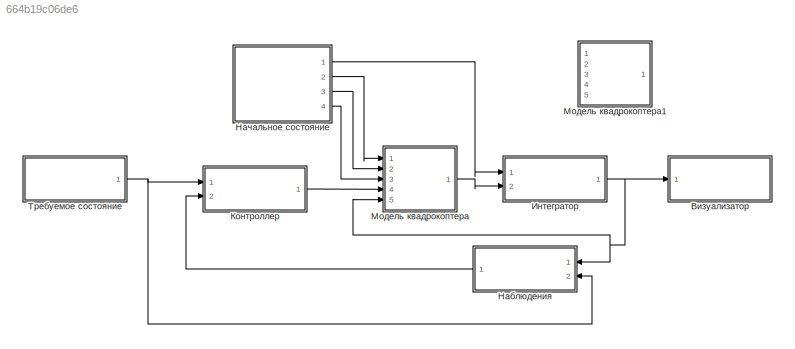
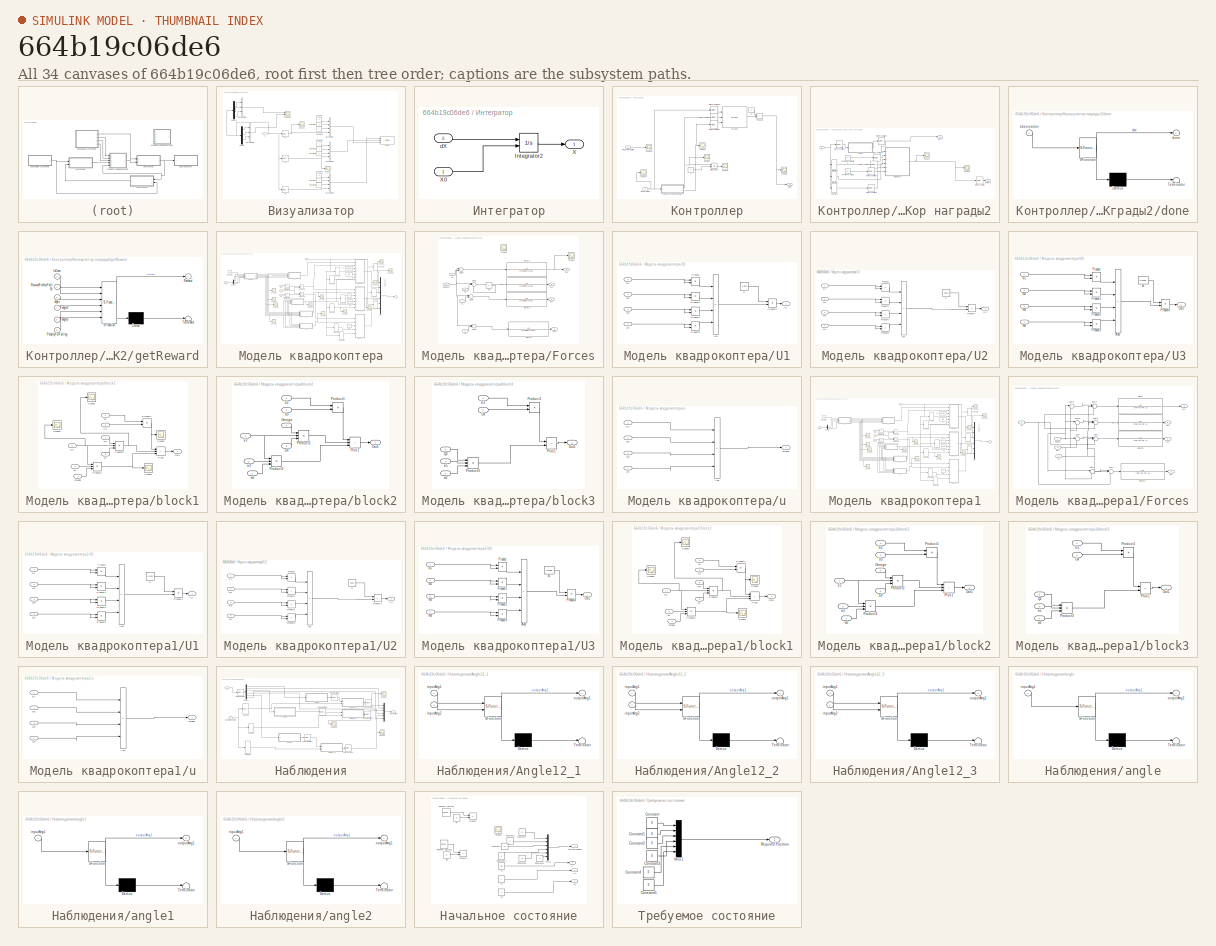
[diagram: thumbnail index - all 34 canvases of the model, root first then tree order]
MODEL slx_664b19c06de6
KIND model
CONFIG AbsTol = auto
CONFIG EnableMultiTasking = off
CONFIG FixedStep = 0.01
CONFIG MaxStep = auto
CONFIG MinStep = auto
CONFIG RelTol = 1e-3
CONFIG SampleTimeConstraint = Unconstrained
CONFIG Solver = FixedStepAuto
CONFIG SolverName = FixedStepAuto
CONFIG StartTime = 0.0
CONFIG StopTime = 3
BLOCK [SubSystem] Визуализатор
  Ports = [1]
  RequestExecContextInheritance = off
BLOCK [BusCreator] Визуализатор/Bus Creator
  DisplayOption = bar
  InheritFromInputs = on
  Inputs = 4
  Ports = [4, 1]
BLOCK [BusCreator] Визуализатор/Bus Creator1
  DisplayOption = bar
  InheritFromInputs = on
  Inputs = 4
  Ports = [4, 1]
BLOCK [BusCreator] Визуализатор/Bus Creator2
  DisplayOption = bar
  InheritFromInputs = on
  Inputs = 4
  Ports = [4, 1]
BLOCK [BusCreator] Визуализатор/Bus Creator3
  DisplayOption = bar
  InheritFromInputs = on
  Inputs = 3
  Ports = [3, 1]
BLOCK [BusCreator] Визуализатор/Bus Creator4
  DisplayOption = bar
  InheritFromInputs = on
  Inputs = 3
  Ports = [3, 1]
BLOCK [Constant] Визуализатор/Constant
  Value = 0
BLOCK [Constant] Визуализатор/Constant1
  Value = 0
BLOCK [Constant] Визуализатор/Constant2
  Value = -1
BLOCK [Constant] Визуализатор/Constant3
  Value = 0
BLOCK [Constant] Визуализатор/Constant4
  Value = -1
BLOCK [Constant] Визуализатор/Constant5
  Value = 0
BLOCK [Constant] Визуализатор/Constant6
  Value = 0
BLOCK [Constant] Визуализатор/Constant7
  Value = -1
BLOCK [Constant] Визуализатор/Constant8
  Value = 0
BLOCK [Demux] Визуализатор/Demux
  Outputs = 6
  Ports = [1, 6]
BLOCK [Demux] Визуализатор/Demux1
  Outputs = 6
  Ports = [1, 6]
BLOCK [Scope] Визуализатор/Scope1
  Floating = off
  NumInputPorts = 1
  Ports = [1]
  ScopeSpecificationString = Simulink.scopes.TimeScopeBlockCfg('CurrentConfiguration', extmgr.ConfigurationSet(extmgr.Configuration('Core','General UI',true,'FigureColor',[1 1 1]),extmgr.Configuration('Core','Source UI',true),extmgr.Configuration('Sources','WiredSimulink',true),extmgr.Configuration('Visuals','Time Domain',true,'SerializedDisplays',{struct('MinYLimReal','-0.13323','MaxYLimReal','1.12591','YLabelReal','','MinYL...<+1511ch>
BLOCK [Scope] Визуализатор/Scope10
  Floating = off
  NumInputPorts = 2
  Ports = [2]
  ScopeSpecificationString = Simulink.scopes.TimeScopeBlockCfg('CurrentConfiguration', extmgr.ConfigurationSet(extmgr.Configuration('Core','General UI',true,'FigureColor',[1 1 1]),extmgr.Configuration('Core','Source UI',true),extmgr.Configuration('Sources','WiredSimulink',true,'DataLoggingVariableName','ScopeData1','DataLoggingDecimateData',true),extmgr.Configuration('Visuals','Time Domain',true,'SerializedDisplays',{struct('...<+3072ch>
BLOCK [Scope] Визуализатор/Scope4
  Floating = off
  NumInputPorts = 1
  Ports = [1]
  ScopeSpecificationString = Simulink.scopes.TimeScopeBlockCfg('CurrentConfiguration', extmgr.ConfigurationSet(extmgr.Configuration('Core','General UI',true,'FigureColor',[1 1 1]),extmgr.Configuration('Core','Source UI',true),extmgr.Configuration('Sources','WiredSimulink',true,'DataLoggingVariableName','ScopeData9'),extmgr.Configuration('Visuals','Time Domain',true,'SerializedDisplays',{struct('MinYLimReal','-0.12511','MaxYLi...<+1548ch>
BLOCK [Reference] Визуализатор/VR Sink  REF=vrlib/VR Sink
  InstantiateOnLoad = on
  Ports = [3, 1]
  SourceBlock = vrlib/VR Sink
  SourceProductBaseCode = SL
  SourceType = Virtual Reality Sink
BLOCK [Inport] Визуализатор/X
BLOCK [Selector] Визуализатор/X1
  IndexOptions = Index vector (dialog)
  Indices = [1]
  InputPortWidth = 6
  OutputSizes = 1
  Ports = [1, 1]
BLOCK [Selector] Визуализатор/X2
  IndexOptions = Index vector (dialog)
  Indices = [5]
  InputPortWidth = 6
  OutputSizes = 1
  Ports = [1, 1]
BLOCK [Selector] Визуализатор/X3
  IndexOptions = Index vector (dialog)
  Indices = [3]
  InputPortWidth = 6
  OutputSizes = 1
  Ports = [1, 1]
BLOCK [SubSystem] Интегратор
  Ports = [2, 1]
  RequestExecContextInheritance = off
BLOCK [Integrator] Интегратор/Integrator2
  InitialConditionSource = external
  Ports = [2, 1]
BLOCK [Outport] Интегратор/X
BLOCK [Inport] Интегратор/X0
BLOCK [Inport] Интегратор/dX
  Port = 2
BLOCK [SubSystem] Контроллер
  Ports = [2, 1]
  RequestExecContextInheritance = off
BLOCK [Outport] Контроллер/Action
BLOCK [Integrator] Контроллер/Integrator2
  InitialConditionSource = external
  Ports = [2, 1]
BLOCK [Inport] Контроллер/Observation
  Port = 2
BLOCK [Product] Контроллер/Product2
  Ports = [2, 1]
BLOCK [Reference] Контроллер/RL Agent  REF=rllib/RL Agent
  Ports = [3, 1]
  SourceBlock = rllib/RL Agent
  SourceProductBaseCode = RL
  SourceType = RL Agent
BLOCK [RateTransition] Контроллер/Rate Transition1
BLOCK [RateTransition] Контроллер/Rate Transition2
BLOCK [RateTransition] Контроллер/Rate Transition5
BLOCK [Inport] Контроллер/Required Position
BLOCK [Scope] Контроллер/Scope1
  Floating = off
  NumInputPorts = 1
  Ports = [1]
  ScopeSpecificationString = Simulink.scopes.TimeScopeBlockCfg('CurrentConfiguration', extmgr.ConfigurationSet(extmgr.Configuration('Core','General UI',true,'FigureColor',[1 1 1]),extmgr.Configuration('Core','Source UI',true),extmgr.Configuration('Sources','WiredSimulink',true,'DataLoggingVariableName','ScopeData1'),extmgr.Configuration('Visuals','Time Domain',true,'SerializedDisplays',{struct('MinYLimReal','-2954.57596','Max...<+1611ch>
BLOCK [Scope] Контроллер/Scope10
  Floating = off
  NumInputPorts = 1
  Ports = [1]
  ScopeSpecificationString = Simulink.scopes.TimeScopeBlockCfg('CurrentConfiguration', extmgr.ConfigurationSet(extmgr.Configuration('Core','General UI',true,'FigureColor',[1 1 1]),extmgr.Configuration('Core','Source UI',true),extmgr.Configuration('Sources','WiredSimulink',true,'DataLoggingVariableName','ScopeData2'),extmgr.Configuration('Visuals','Time Domain',true,'SerializedDisplays',{struct('MinYLimReal','-4.07926','MaxYLi...<+1548ch>
BLOCK [Scope] Контроллер/Scope2
  Floating = off
  NumInputPorts = 1
  Ports = [1]
  ScopeSpecificationString = Simulink.scopes.TimeScopeBlockCfg('CurrentConfiguration', extmgr.ConfigurationSet(extmgr.Configuration('Core','General UI',true,'FigureColor',[1 1 1]),extmgr.Configuration('Core','Source UI',true),extmgr.Configuration('Sources','WiredSimulink',true,'DataLoggingVariableName','ScopeData2'),extmgr.Configuration('Visuals','Time Domain',true,'SerializedDisplays',{struct('MinYLimReal','-1.00000','MaxYLi...<+1570ch>
BLOCK [Scope] Контроллер/Scope3
  Floating = off
  NumInputPorts = 1
  Ports = [1]
  ScopeSpecificationString = Simulink.scopes.TimeScopeBlockCfg('CurrentConfiguration', extmgr.ConfigurationSet(extmgr.Configuration('Core','General UI',true,'FigureColor',[1 1 1]),extmgr.Configuration('Core','Source UI',true),extmgr.Configuration('Sources','WiredSimulink',true,'DataLoggingVariableName','ScopeData3'),extmgr.Configuration('Visuals','Time Domain',true,'SerializedDisplays',{struct('MinYLimReal','-731.43072','MaxY...<+1576ch>
BLOCK [Scope] Контроллер/Scope4
  Floating = off
  NumInputPorts = 1
  Ports = [1]
  ScopeSpecificationString = Simulink.scopes.TimeScopeBlockCfg('CurrentConfiguration', extmgr.ConfigurationSet(extmgr.Configuration('Core','General UI',true,'FigureColor',[1 1 1]),extmgr.Configuration('Core','Source UI',true),extmgr.Configuration('Sources','WiredSimulink',true,'DataLoggingVariableName','ScopeData2'),extmgr.Configuration('Visuals','Time Domain',true,'PlotType','Line','SerializedDisplays',{struct('MinYLimReal',...<+2246ch>
BLOCK [Scope] Контроллер/Scope5
  Floating = off
  NumInputPorts = 1
  Ports = [1]
  ScopeSpecificationString = Simulink.scopes.TimeScopeBlockCfg('CurrentConfiguration', extmgr.ConfigurationSet(extmgr.Configuration('Core','General UI',true,'FigureColor',[1 1 1]),extmgr.Configuration('Core','Source UI',true),extmgr.Configuration('Sources','WiredSimulink',true,'DataLoggingVariableName','ScopeData1'),extmgr.Configuration('Visuals','Time Domain',true,'SerializedDisplays',{struct('MinYLimReal','-40.00000','MaxYL...<+1891ch>
BLOCK [Constant] Контроллер/s
  Value = 0
BLOCK [Constant] Контроллер/s1
  Value = 32
BLOCK [SubSystem] Контроллер/Калькулятор награды2
  Ports = [1, 2]
  RequestExecContextInheritance = off
BLOCK [Outport] Контроллер/Калькулятор награды2/IsDone
  Port = 2
BLOCK [Constant] Контроллер/Калькулятор награды2/PenaltyForFalling
  Value = -20
BLOCK [Constant] Контроллер/Калькулятор награды2/PenaltyForNotFalling
  Value = 32
BLOCK [RateTransition] Контроллер/Калькулятор награды2/Rate Transition
BLOCK [RateTransition] Контроллер/Калькулятор награды2/Rate Transition1
BLOCK [RateTransition] Контроллер/Калькулятор награды2/Rate Transition2
BLOCK [RateTransition] Контроллер/Калькулятор награды2/Rate Transition3
BLOCK [RateTransition] Контроллер/Калькулятор награды2/Rate Transition4
BLOCK [RateTransition] Контроллер/Калькулятор награды2/Rate Transition5
BLOCK [RateTransition] Контроллер/Калькулятор награды2/Rate Transition6
BLOCK [Outport] Контроллер/Калькулятор награды2/Reward
BLOCK [Scope] Контроллер/Калькулятор награды2/Scope1
  Floating = off
  NumInputPorts = 1
  Ports = [1]
  ScopeSpecificationString = Simulink.scopes.TimeScopeBlockCfg('CurrentConfiguration', extmgr.ConfigurationSet(extmgr.Configuration('Core','General UI',true,'FigureColor',[1 1 1]),extmgr.Configuration('Core','Source UI',true),extmgr.Configuration('Sources','WiredSimulink',true,'DataLoggingVariableName','ScopeData1'),extmgr.Configuration('Visuals','Time Domain',true,'SerializedDisplays',{struct('MinYLimReal','-40.84703','MaxYL...<+1567ch>
BLOCK [Scope] Контроллер/Калькулятор награды2/Scope4
  Floating = off
  NumInputPorts = 1
  Ports = [1]
  ScopeSpecificationString = Simulink.scopes.TimeScopeBlockCfg('CurrentConfiguration', extmgr.ConfigurationSet(extmgr.Configuration('Core','General UI',true,'FigureColor',[1 1 1]),extmgr.Configuration('Core','Source UI',true),extmgr.Configuration('Sources','WiredSimulink',true,'DataLoggingVariableName','ScopeData5'),extmgr.Configuration('Visuals','Time Domain',true,'SerializedDisplays',{struct('MinYLimReal','-40.84703','MaxYL...<+1567ch>
BLOCK [Selector] Контроллер/Калькулятор награды2/Selector1
  IndexOptions = Index vector (dialog)
  Indices = [1]
  InputPortWidth = 6
  OutputSizes = 1
  Ports = [1, 1]
BLOCK [Selector] Контроллер/Калькулятор награды2/Selector2
  IndexOptions = Index vector (dialog)
  Indices = [5]
  InputPortWidth = 6
  OutputSizes = 1
  Ports = [1, 1]
BLOCK [Selector] Контроллер/Калькулятор награды2/Selector3
  IndexOptions = Index vector (dialog)
  Indices = [3]
  InputPortWidth = 6
  OutputSizes = 1
  Ports = [1, 1]
BLOCK [Inport] Контроллер/Калькулятор награды2/X
BLOCK [SubSystem] Контроллер/Калькулятор награды2/done
  ErrorFcn = Stateflow.Translate.translate
  PermitHierarchicalResolution = ExplicitOnly
  Ports = [1, 1]
  RequestExecContextInheritance = off
  SFBlockType = MATLAB Function
  TreatAsAtomicUnit = on
BLOCK [Demux] Контроллер/Калькулятор награды2/done/ Demux 
  Outputs = 1
  Ports = [1, 1]
BLOCK [S-Function] Контроллер/Калькулятор награды2/done/ SFunction 
  EnableBusSupport = on
  FunctionName = sf_sfun
  PortCounts = [1 2]
  Ports = [1, 2]
  SFcnIsStateOwnerBlock = off
  SFunctionDeploymentMode = off
  Tag = Stateflow S-Function 9
BLOCK [Terminator] Контроллер/Калькулятор награды2/done/ Terminator 
BLOCK [Outport] Контроллер/Калькулятор награды2/done/done
BLOCK [Inport] Контроллер/Калькулятор награды2/done/observation
BLOCK [SubSystem] Контроллер/Калькулятор награды2/getReward
  ErrorFcn = Stateflow.Translate.translate
  PermitHierarchicalResolution = ExplicitOnly
  Ports = [6, 1]
  RequestExecContextInheritance = off
  SFBlockType = MATLAB Function
  TreatAsAtomicUnit = on
BLOCK [Demux] Контроллер/Калькулятор награды2/getReward/ Demux 
  Outputs = 1
  Ports = [1, 1]
BLOCK [S-Function] Контроллер/Калькулятор награды2/getReward/ SFunction 
  EnableBusSupport = on
  FunctionName = sf_sfun
  PortCounts = [6 2]
  Ports = [6, 2]
  SFcnIsStateOwnerBlock = off
  SFunctionDeploymentMode = off
  Tag = Stateflow S-Function 11
BLOCK [Terminator] Контроллер/Калькулятор награды2/getReward/ Terminator 
BLOCK [Inport] Контроллер/Калькулятор награды2/getReward/IsDone
BLOCK [Inport] Контроллер/Калькулятор награды2/getReward/PenaltyForFalling
  Port = 6
BLOCK [Outport] Контроллер/Калькулятор награды2/getReward/Reward
BLOCK [Inport] Контроллер/Калькулятор награды2/getReward/RewardForNotFalling
  Port = 2
BLOCK [Inport] Контроллер/Калькулятор награды2/getReward/angle
  Port = 3
BLOCK [Inport] Контроллер/Калькулятор награды2/getReward/angle2
  Port = 4
BLOCK [Inport] Контроллер/Калькулятор награды2/getReward/angle3
  Port = 5
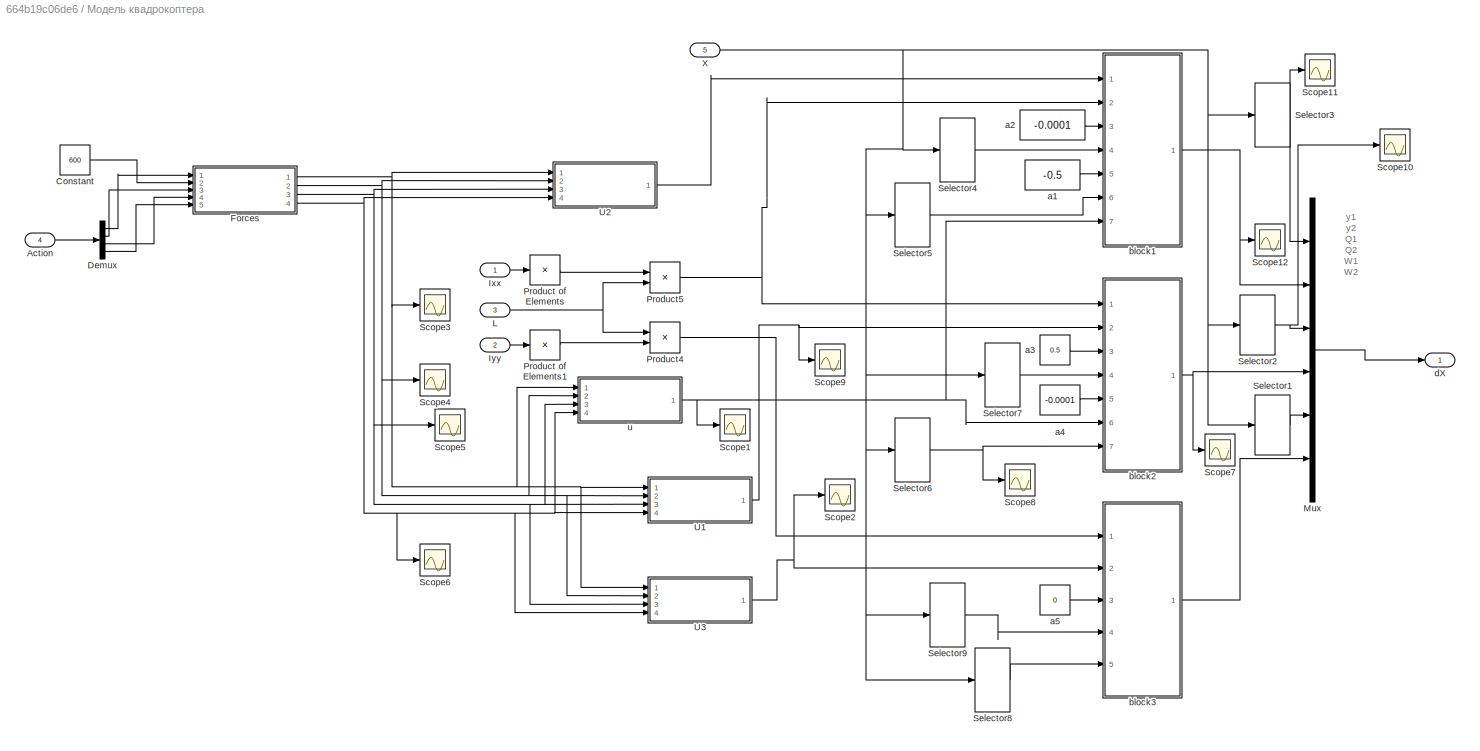
BLOCK [SubSystem] Модель квадрокоптера
  Ports = [5, 1]
  RequestExecContextInheritance = off
BLOCK [Inport] Модель квадрокоптера/Action
  Port = 4
BLOCK [Constant] Модель квадрокоптера/Constant
  Value = 600
BLOCK [Demux] Модель квадрокоптера/Demux
  Ports = [1, 4]
BLOCK [SubSystem] Модель квадрокоптера/Forces
  Ports = [5, 4]
  RequestExecContextInheritance = off
BLOCK [Inport] Модель квадрокоптера/Forces/F1
BLOCK [Inport] Модель квадрокоптера/Forces/F2
  Port = 3
BLOCK [Inport] Модель квадрокоптера/Forces/F3
  Port = 4
BLOCK [Inport] Модель квадрокоптера/Forces/F4
  Port = 5
BLOCK [Inport] Модель квадрокоптера/Forces/FConst1
  Port = 2
BLOCK [TransferFcn] Модель квадрокоптера/Forces/Rotor1
  Denominator = [0.00003 0.005 1]
BLOCK [TransferFcn] Модель квадрокоптера/Forces/Rotor2
  Denominator = [0.00003 0.005 1]
BLOCK [TransferFcn] Модель квадрокоптера/Forces/Rotor3
  Denominator = [0.00003 0.005 1]
BLOCK [TransferFcn] Модель квадрокоптера/Forces/Rotor4
  Denominator = [0.00003 0.005 1]
BLOCK [Scope] Модель квадрокоптера/Forces/Scope1
  Floating = off
  NumInputPorts = 1
  Ports = [1]
  ScopeSpecificationString = Simulink.scopes.TimeScopeBlockCfg('CurrentConfiguration', extmgr.ConfigurationSet(extmgr.Configuration('Core','General UI',true,'FigureColor',[1 1 1]),extmgr.Configuration('Core','Source UI',true),extmgr.Configuration('Sources','WiredSimulink',true,'DataLoggingVariableName','ScopeData2'),extmgr.Configuration('Visuals','Time Domain',true,'SerializedDisplays',{struct('MinYLimReal','570.00000','MaxYL...<+1581ch>
BLOCK [Scope] Модель квадрокоптера/Forces/Scope2
  Floating = off
  NumInputPorts = 1
  Ports = [1]
  ScopeSpecificationString = Simulink.scopes.TimeScopeBlockCfg('CurrentConfiguration', extmgr.ConfigurationSet(extmgr.Configuration('Core','General UI',true,'FigureColor',[1 1 1]),extmgr.Configuration('Core','Source UI',true),extmgr.Configuration('Sources','WiredSimulink',true,'DataLoggingVariableName','ScopeData3'),extmgr.Configuration('Visuals','Time Domain',true,'SerializedDisplays',{struct('MinYLimReal','-78.97661','MaxYL...<+1583ch>
BLOCK [Sum] Модель квадрокоптера/Forces/Sum1
  Inputs = |+++
  Ports = [3, 1]
BLOCK [Sum] Модель квадрокоптера/Forces/Sum2
  Inputs = |++
  Ports = [2, 1]
BLOCK [Sum] Модель квадрокоптера/Forces/Sum3
  Inputs = |++
  Ports = [2, 1]
BLOCK [Sum] Модель квадрокоптера/Forces/Sum4
  Inputs = |++
  Ports = [2, 1]
BLOCK [Outport] Модель квадрокоптера/Forces/W1
BLOCK [Outport] Модель квадрокоптера/Forces/W2
  Port = 2
BLOCK [Outport] Модель квадрокоптера/Forces/W3
  Port = 3
BLOCK [Outport] Модель квадрокоптера/Forces/W4
  Port = 4
BLOCK [Constant] Модель квадрокоптера/Forces/a3
  Value = 0
BLOCK [Inport] Модель квадрокоптера/Ixx
BLOCK [Inport] Модель квадрокоптера/Iyy
  Port = 2
BLOCK [Inport] Модель квадрокоптера/L
  Port = 3
BLOCK [Mux] Модель квадрокоптера/Mux
  DisplayOption = bar
  Inputs = 6
  Ports = [6, 1]
BLOCK [Product] Модель квадрокоптера/Product of Elements
  Inputs = /
  Ports = [1, 1]
BLOCK [Product] Модель квадрокоптера/Product of Elements1
  Inputs = /
  Ports = [1, 1]
BLOCK [Product] Модель квадрокоптера/Product4
  Ports = [2, 1]
BLOCK [Product] Модель квадрокоптера/Product5
  Ports = [2, 1]
BLOCK [Scope] Модель квадрокоптера/Scope1
  Floating = off
  NumInputPorts = 1
  Ports = [1]
  ScopeSpecificationString = Simulink.scopes.TimeScopeBlockCfg('CurrentConfiguration', extmgr.ConfigurationSet(extmgr.Configuration('Core','General UI',true,'FigureColor',[1 1 1]),extmgr.Configuration('Core','Source UI',true),extmgr.Configuration('Sources','WiredSimulink',true,'DataLoggingVariableName','ScopeData1'),extmgr.Configuration('Visuals','Time Domain',true,'SerializedDisplays',{struct('MinYLimReal','-10.78347','MaxYL...<+1572ch>
BLOCK [Scope] Модель квадрокоптера/Scope10
  Floating = off
  NumInputPorts = 1
  Ports = [1]
  ScopeSpecificationString = Simulink.scopes.TimeScopeBlockCfg('CurrentConfiguration', extmgr.ConfigurationSet(extmgr.Configuration('Core','General UI',true,'FigureColor',[1 1 1]),extmgr.Configuration('Core','Source UI',true),extmgr.Configuration('Sources','WiredSimulink',true,'DataLoggingVariableName','ScopeData18'),extmgr.Configuration('Visuals','Time Domain',true,'SerializedDisplays',{struct('MinYLimReal','-0.28739','MaxYL...<+1576ch>
BLOCK [Scope] Модель квадрокоптера/Scope11
  Floating = off
  NumInputPorts = 1
  Ports = [1]
  ScopeSpecificationString = Simulink.scopes.TimeScopeBlockCfg('CurrentConfiguration', extmgr.ConfigurationSet(extmgr.Configuration('Core','General UI',true,'FigureColor',[1 1 1]),extmgr.Configuration('Core','Source UI',true),extmgr.Configuration('Sources','WiredSimulink',true,'DataLoggingVariableName','ScopeData19'),extmgr.Configuration('Visuals','Time Domain',true,'SerializedDisplays',{struct('MinYLimReal','-27.69429','MaxY...<+1582ch>
BLOCK [Scope] Модель квадрокоптера/Scope12
  Floating = off
  NumInputPorts = 1
  Ports = [1]
  ScopeSpecificationString = Simulink.scopes.TimeScopeBlockCfg('CurrentConfiguration', extmgr.ConfigurationSet(extmgr.Configuration('Core','General UI',true,'FigureColor',[1 1 1]),extmgr.Configuration('Core','Source UI',true),extmgr.Configuration('Sources','WiredSimulink',true,'DataLoggingVariableName','ScopeData2'),extmgr.Configuration('Visuals','Time Domain',true,'SerializedDisplays',{struct('MinYLimReal','-10.78347','MaxYL...<+1579ch>
BLOCK [Scope] Модель квадрокоптера/Scope2
  Floating = off
  NumInputPorts = 1
  Ports = [1]
  ScopeSpecificationString = Simulink.scopes.TimeScopeBlockCfg('CurrentConfiguration', extmgr.ConfigurationSet(extmgr.Configuration('Core','General UI',true,'FigureColor',[1 1 1]),extmgr.Configuration('Core','Source UI',true),extmgr.Configuration('Sources','WiredSimulink',true,'DataLoggingVariableName','ScopeData7'),extmgr.Configuration('Visuals','Time Domain',true,'SerializedDisplays',{struct('MinYLimReal','-10.78347','MaxYL...<+1573ch>
BLOCK [Scope] Модель квадрокоптера/Scope3
  Floating = off
  NumInputPorts = 1
  Ports = [1]
  ScopeSpecificationString = Simulink.scopes.TimeScopeBlockCfg('CurrentConfiguration', extmgr.ConfigurationSet(extmgr.Configuration('Core','General UI',true,'FigureColor',[1 1 1]),extmgr.Configuration('Core','Source UI',true),extmgr.Configuration('Sources','WiredSimulink',true,'DataLoggingVariableName','ScopeData1'),extmgr.Configuration('Visuals','Time Domain',true,'SerializedDisplays',{struct('MinYLimReal','992.92722','MaxYL...<+1591ch>
BLOCK [Scope] Модель квадрокоптера/Scope4
  Floating = off
  NumInputPorts = 1
  Ports = [1]
  ScopeSpecificationString = Simulink.scopes.TimeScopeBlockCfg('CurrentConfiguration', extmgr.ConfigurationSet(extmgr.Configuration('Core','General UI',true,'FigureColor',[1 1 1]),extmgr.Configuration('Core','Source UI',true),extmgr.Configuration('Sources','WiredSimulink',true,'DataLoggingVariableName','ScopeData8'),extmgr.Configuration('Visuals','Time Domain',true,'SerializedDisplays',{struct('MinYLimReal','992.92722','MaxYL...<+1591ch>
BLOCK [Scope] Модель квадрокоптера/Scope5
  Floating = off
  NumInputPorts = 1
  Ports = [1]
  ScopeSpecificationString = Simulink.scopes.TimeScopeBlockCfg('CurrentConfiguration', extmgr.ConfigurationSet(extmgr.Configuration('Core','General UI',true,'FigureColor',[1 1 1]),extmgr.Configuration('Core','Source UI',true),extmgr.Configuration('Sources','WiredSimulink',true,'DataLoggingVariableName','ScopeData9'),extmgr.Configuration('Visuals','Time Domain',true,'SerializedDisplays',{struct('MinYLimReal','992.92722','MaxYL...<+1591ch>
BLOCK [Scope] Модель квадрокоптера/Scope6
  Floating = off
  NumInputPorts = 1
  Ports = [1]
  ScopeSpecificationString = Simulink.scopes.TimeScopeBlockCfg('CurrentConfiguration', extmgr.ConfigurationSet(extmgr.Configuration('Core','General UI',true,'FigureColor',[1 1 1]),extmgr.Configuration('Core','Source UI',true),extmgr.Configuration('Sources','WiredSimulink',true,'DataLoggingVariableName','ScopeData10'),extmgr.Configuration('Visuals','Time Domain',true,'SerializedDisplays',{struct('MinYLimReal','992.92722','MaxY...<+1592ch>
BLOCK [Scope] Модель квадрокоптера/Scope7
  Floating = off
  NumInputPorts = 1
  Ports = [1]
  ScopeSpecificationString = Simulink.scopes.TimeScopeBlockCfg('CurrentConfiguration', extmgr.ConfigurationSet(extmgr.Configuration('Core','General UI',true,'FigureColor',[1 1 1]),extmgr.Configuration('Core','Source UI',true),extmgr.Configuration('Sources','WiredSimulink',true,'DataLoggingVariableName','ScopeData15'),extmgr.Configuration('Visuals','Time Domain',true,'SerializedDisplays',{struct('MinYLimReal','-10.78347','MaxY...<+1579ch>
BLOCK [Scope] Модель квадрокоптера/Scope8
  Floating = off
  NumInputPorts = 1
  Ports = [1]
  ScopeSpecificationString = Simulink.scopes.TimeScopeBlockCfg('CurrentConfiguration', extmgr.ConfigurationSet(extmgr.Configuration('Core','General UI',true,'FigureColor',[1 1 1]),extmgr.Configuration('Core','Source UI',true),extmgr.Configuration('Sources','WiredSimulink',true,'DataLoggingVariableName','ScopeData16'),extmgr.Configuration('Visuals','Time Domain',true,'SerializedDisplays',{struct('MinYLimReal','-10.78347','MaxY...<+1582ch>
BLOCK [Scope] Модель квадрокоптера/Scope9
  Floating = off
  NumInputPorts = 1
  Ports = [1]
  ScopeSpecificationString = Simulink.scopes.TimeScopeBlockCfg('CurrentConfiguration', extmgr.ConfigurationSet(extmgr.Configuration('Core','General UI',true,'FigureColor',[1 1 1]),extmgr.Configuration('Core','Source UI',true),extmgr.Configuration('Sources','WiredSimulink',true,'DataLoggingVariableName','ScopeData17'),extmgr.Configuration('Visuals','Time Domain',true,'SerializedDisplays',{struct('MinYLimReal','-12.10891','MaxY...<+1572ch>
BLOCK [Selector] Модель квадрокоптера/Selector1
  IndexOptions = Index vector (dialog)
  Indices = [6]
  InputPortWidth = 6
  OutputSizes = 1
  Ports = [1, 1]
BLOCK [Selector] Модель квадрокоптера/Selector2
  IndexOptions = Index vector (dialog)
  Indices = [4]
  InputPortWidth = 6
  OutputSizes = 1
  Ports = [1, 1]
BLOCK [Selector] Модель квадрокоптера/Selector3
  IndexOptions = Index vector (dialog)
  Indices = [2]
  InputPortWidth = 6
  OutputSizes = 1
  Ports = [1, 1]
BLOCK [Selector] Модель квадрокоптера/Selector4
  IndexOptions = Index vector (dialog)
  Indices = [4]
  InputPortWidth = 6
  OutputSizes = 1
  Ports = [1, 1]
BLOCK [Selector] Модель квадрокоптера/Selector5
  IndexOptions = Index vector (dialog)
  Indices = [6]
  InputPortWidth = 6
  OutputSizes = 1
  Ports = [1, 1]
BLOCK [Selector] Модель квадрокоптера/Selector6
  IndexOptions = Index vector (dialog)
  Indices = [6]
  InputPortWidth = 6
  OutputSizes = 1
  Ports = [1, 1]
BLOCK [Selector] Модель квадрокоптера/Selector7
  IndexOptions = Index vector (dialog)
  Indices = [2]
  InputPortWidth = 6
  OutputSizes = 1
  Ports = [1, 1]
BLOCK [Selector] Модель квадрокоптера/Selector8
  IndexOptions = Index vector (dialog)
  Indices = [4]
  InputPortWidth = 6
  OutputSizes = 1
  Ports = [1, 1]
BLOCK [Selector] Модель квадрокоптера/Selector9
  IndexOptions = Index vector (dialog)
  Indices = [6]
  InputPortWidth = 6
  OutputSizes = 1
  Ports = [1, 1]
BLOCK [SubSystem] Модель квадрокоптера/U1
  Ports = [4, 1]
  RequestExecContextInheritance = off
BLOCK [Sum] Модель квадрокоптера/U1/Add
  IconShape = rectangular
  Inputs = ++--
  Ports = [4, 1]
BLOCK [Product] Модель квадрокоптера/U1/Product
  Ports = [2, 1]
BLOCK [Product] Модель квадрокоптера/U1/Product1
  Ports = [2, 1]
BLOCK [Product] Модель квадрокоптера/U1/Product2
  Ports = [2, 1]
BLOCK [Product] Модель квадрокоптера/U1/Product3
  Ports = [2, 1]
BLOCK [Product] Модель квадрокоптера/U1/Product4
  Ports = [2, 1]
BLOCK [Outport] Модель квадрокоптера/U1/U1
BLOCK [Inport] Модель квадрокоптера/U1/W2
  Port = 2
BLOCK [Inport] Модель квадрокоптера/U1/W3
  Port = 3
BLOCK [Inport] Модель квадрокоптера/U1/W4
  Port = 4
BLOCK [Constant] Модель квадрокоптера/U1/b
  Value = 0.001
BLOCK [Inport] Модель квадрокоптера/U1/w1
BLOCK [SubSystem] Модель квадрокоптера/U2
  Ports = [4, 1]
  RequestExecContextInheritance = off
BLOCK [Sum] Модель квадрокоптера/U2/Add
  IconShape = rectangular
  Inputs = +-+-
  Ports = [4, 1]
BLOCK [Product] Модель квадрокоптера/U2/Product
  Ports = [2, 1]
BLOCK [Product] Модель квадрокоптера/U2/Product1
  Ports = [2, 1]
BLOCK [Product] Модель квадрокоптера/U2/Product2
  Ports = [2, 1]
BLOCK [Product] Модель квадрокоптера/U2/Product3
  Ports = [2, 1]
BLOCK [Product] Модель квадрокоптера/U2/Product4
  Ports = [2, 1]
BLOCK [Outport] Модель квадрокоптера/U2/U3
BLOCK [Inport] Модель квадрокоптера/U2/W2
  Port = 2
BLOCK [Inport] Модель квадрокоптера/U2/W3
  Port = 3
BLOCK [Inport] Модель квадрокоптера/U2/W4
  Port = 4
BLOCK [Constant] Модель квадрокоптера/U2/b
  Value = 0.001
BLOCK [Inport] Модель квадрокоптера/U2/w1
BLOCK [SubSystem] Модель квадрокоптера/U3
  Ports = [4, 1]
  RequestExecContextInheritance = off
BLOCK [Sum] Модель квадрокоптера/U3/Add
  IconShape = rectangular
  Inputs = -++-
  Ports = [4, 1]
BLOCK [Outport] Модель квадрокоптера/U3/Out1
BLOCK [Product] Модель квадрокоптера/U3/Product
  Ports = [2, 1]
BLOCK [Product] Модель квадрокоптера/U3/Product1
  Ports = [2, 1]
BLOCK [Product] Модель квадрокоптера/U3/Product2
  Ports = [2, 1]
BLOCK [Product] Модель квадрокоптера/U3/Product3
  Ports = [2, 1]
BLOCK [Product] Модель квадрокоптера/U3/Product4
  Ports = [2, 1]
BLOCK [Inport] Модель квадрокоптера/U3/W2
  Port = 2
BLOCK [Inport] Модель квадрокоптера/U3/W3
  Port = 3
BLOCK [Inport] Модель квадрокоптера/U3/W4
  Port = 4
BLOCK [Constant] Модель квадрокоптера/U3/b1
  Value = 0.0008
BLOCK [Inport] Модель квадрокоптера/U3/w1
BLOCK [Inport] Модель квадрокоптера/X
  Port = 5
BLOCK [Constant] Модель квадрокоптера/a1
  Value = -0.5
BLOCK [Constant] Модель квадрокоптера/a2
  Value = -0.0001
BLOCK [Constant] Модель квадрокоптера/a3
  Value = 0.5
BLOCK [Constant] Модель квадрокоптера/a4
  Value = -0.0001
BLOCK [Constant] Модель квадрокоптера/a5
  Value = 0
BLOCK [SubSystem] Модель квадрокоптера/block1
  Ports = [7, 1]
  RequestExecContextInheritance = off
BLOCK [Outport] Модель квадрокоптера/block1/Out1
BLOCK [Sum] Модель квадрокоптера/block1/Plus1
  IconShape = rectangular
  Inputs = +++
  Ports = [3, 1]
BLOCK [Product] Модель квадрокоптера/block1/Product1
  Ports = [2, 1]
BLOCK [Product] Модель квадрокоптера/block1/Product2
  Inputs = 3
  Ports = [3, 1]
BLOCK [Product] Модель квадрокоптера/block1/Product3
  Inputs = 3
  Ports = [3, 1]
BLOCK [Inport] Модель квадрокоптера/block1/Q2
  Port = 4
BLOCK [Scope] Модель квадрокоптера/block1/Scope1
  Floating = off
  NumInputPorts = 1
  Ports = [1]
  ScopeSpecificationString = Simulink.scopes.TimeScopeBlockCfg('CurrentConfiguration', extmgr.ConfigurationSet(extmgr.Configuration('Core','General UI',true,'FigureColor',[1 1 1]),extmgr.Configuration('Core','Source UI',true),extmgr.Configuration('Sources','WiredSimulink',true,'DataLoggingVariableName','ScopeData12'),extmgr.Configuration('Visuals','Time Domain',true,'SerializedDisplays',{struct('MinYLimReal','-10.78347','MaxY...<+1580ch>
BLOCK [Scope] Модель квадрокоптера/block1/Scope2
  Floating = off
  NumInputPorts = 1
  Ports = [1]
  ScopeSpecificationString = Simulink.scopes.TimeScopeBlockCfg('CurrentConfiguration', extmgr.ConfigurationSet(extmgr.Configuration('Core','General UI',true,'FigureColor',[1 1 1]),extmgr.Configuration('Core','Source UI',true),extmgr.Configuration('Sources','WiredSimulink',true,'DataLoggingVariableName','ScopeData13'),extmgr.Configuration('Visuals','Time Domain',true,'SerializedDisplays',{struct('MinYLimReal','-10.78347','MaxY...<+1582ch>
BLOCK [Scope] Модель квадрокоптера/block1/Scope3
  Floating = off
  NumInputPorts = 1
  Ports = [1]
  ScopeSpecificationString = Simulink.scopes.TimeScopeBlockCfg('CurrentConfiguration', extmgr.ConfigurationSet(extmgr.Configuration('Core','General UI',true,'FigureColor',[1 1 1]),extmgr.Configuration('Core','Source UI',true),extmgr.Configuration('Sources','WiredSimulink',true,'DataLoggingVariableName','ScopeData1'),extmgr.Configuration('Visuals','Time Domain',true,'SerializedDisplays',{struct('MinYLimReal','-10.78347','MaxYL...<+1575ch>
BLOCK [Scope] Модель квадрокоптера/block1/Scope7
  Floating = off
  NumInputPorts = 1
  Ports = [1]
  ScopeSpecificationString = Simulink.scopes.TimeScopeBlockCfg('CurrentConfiguration', extmgr.ConfigurationSet(extmgr.Configuration('Core','General UI',true,'FigureColor',[1 1 1]),extmgr.Configuration('Core','Source UI',true),extmgr.Configuration('Sources','WiredSimulink',true,'DataLoggingVariableName','ScopeData11'),extmgr.Configuration('Visuals','Time Domain',true,'SerializedDisplays',{struct('MinYLimReal','-0.47754','MaxYL...<+1574ch>
BLOCK [Inport] Модель квадрокоптера/block1/U1
BLOCK [Inport] Модель квадрокоптера/block1/a1
  Port = 5
BLOCK [Inport] Модель квадрокоптера/block1/a2
  Port = 3
BLOCK [Inport] Модель квадрокоптера/block1/b1
  Port = 2
BLOCK [Inport] Модель квадрокоптера/block1/omega
  Port = 7
BLOCK [Inport] Модель квадрокоптера/block1/w2
  Port = 6
BLOCK [SubSystem] Модель квадрокоптера/block2
  Ports = [7, 1]
  RequestExecContextInheritance = off
BLOCK [Inport] Модель квадрокоптера/block2/Omega
  Port = 6
BLOCK [Outport] Модель квадрокоптера/block2/Out1
BLOCK [Sum] Модель квадрокоптера/block2/Plus1
  IconShape = rectangular
  Inputs = +++
  Ports = [3, 1]
BLOCK [Product] Модель квадрокоптера/block2/Product1
  Ports = [2, 1]
BLOCK [Product] Модель квадрокоптера/block2/Product2
  Inputs = 3
  Ports = [3, 1]
BLOCK [Product] Модель квадрокоптера/block2/Product3
  Inputs = 3
  Ports = [3, 1]
BLOCK [Inport] Модель квадрокоптера/block2/U3
  Port = 2
BLOCK [Inport] Модель квадрокоптера/block2/a3
  Port = 3
BLOCK [Inport] Модель квадрокоптера/block2/a4
  Port = 5
BLOCK [Inport] Модель квадрокоптера/block2/b2
BLOCK [Inport] Модель квадрокоптера/block2/w2
  Port = 7
BLOCK [Inport] Модель квадрокоптера/block2/y2
  Port = 4
BLOCK [SubSystem] Модель квадрокоптера/block3
  Ports = [5, 1]
  RequestExecContextInheritance = off
BLOCK [Outport] Модель квадрокоптера/block3/Out1
BLOCK [Sum] Модель квадрокоптера/block3/Plus1
  IconShape = rectangular
  Inputs = -+
  Ports = [2, 1]
BLOCK [Product] Модель квадрокоптера/block3/Product1
  Ports = [2, 1]
BLOCK [Product] Модель квадрокоптера/block3/Product3
  Inputs = 3
  Ports = [3, 1]
BLOCK [Inport] Модель квадрокоптера/block3/Q2
  Port = 5
BLOCK [Inport] Модель квадрокоптера/block3/U4
  Port = 2
BLOCK [Inport] Модель квадрокоптера/block3/a5
  Port = 3
BLOCK [Inport] Модель квадрокоптера/block3/b3
BLOCK [Inport] Модель квадрокоптера/block3/w2
  Port = 4
BLOCK [Outport] Модель квадрокоптера/dX
BLOCK [SubSystem] Модель квадрокоптера/u
  Ports = [4, 1]
  RequestExecContextInheritance = off
BLOCK [Sum] Модель квадрокоптера/u/Add
  IconShape = rectangular
  Inputs = +--+
  Ports = [4, 1]
BLOCK [Inport] Модель квадрокоптера/u/W2
  Port = 2
BLOCK [Inport] Модель квадрокоптера/u/W3
  Port = 3
BLOCK [Inport] Модель квадрокоптера/u/W4
  Port = 4
BLOCK [Outport] Модель квадрокоптера/u/omega
BLOCK [Inport] Модель квадрокоптера/u/w1
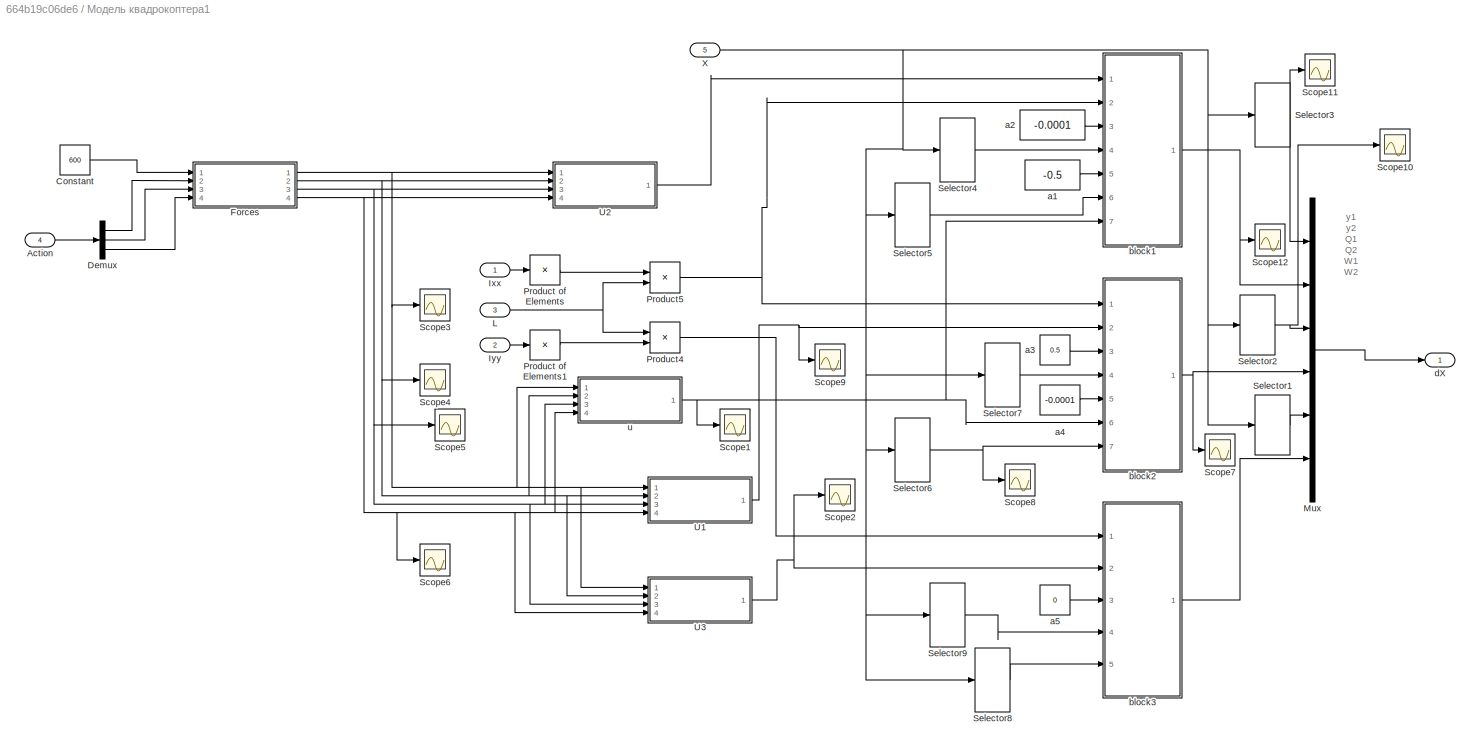
BLOCK [SubSystem] Модель квадрокоптера1
  Ports = [5, 1]
  RequestExecContextInheritance = off
BLOCK [Inport] Модель квадрокоптера1/Action
  Port = 4
BLOCK [Constant] Модель квадрокоптера1/Constant
  Value = 600
BLOCK [Demux] Модель квадрокоптера1/Demux
  Outputs = 3
  Ports = [1, 3]
BLOCK [SubSystem] Модель квадрокоптера1/Forces
  Ports = [4, 4]
  RequestExecContextInheritance = off
BLOCK [Inport] Модель квадрокоптера1/Forces/FConst
BLOCK [Inport] Модель квадрокоптера1/Forces/Fp
  Port = 3
BLOCK [Inport] Модель квадрокоптера1/Forces/Fr
  Port = 2
BLOCK [Inport] Модель квадрокоптера1/Forces/Fy
  Port = 4
BLOCK [TransferFcn] Модель квадрокоптера1/Forces/Rotor
  Denominator = [Tm*Te Tm 1]
BLOCK [TransferFcn] Модель квадрокоптера1/Forces/Rotor1
  Denominator = [Tm*Te Tm 1]
BLOCK [TransferFcn] Модель квадрокоптера1/Forces/Rotor2
  Denominator = [Tm*Te Tm 1]
BLOCK [TransferFcn] Модель квадрокоптера1/Forces/Rotor3
  Denominator = [Tm*Te Tm 1]
BLOCK [Sum] Модель квадрокоптера1/Forces/Sum
  Inputs = |+-
  Ports = [2, 1]
BLOCK [Sum] Модель квадрокоптера1/Forces/Sum1
  Inputs = |+--
  Ports = [3, 1]
BLOCK [Sum] Модель квадрокоптера1/Forces/Sum2
  Inputs = |+-
  Ports = [2, 1]
BLOCK [Sum] Модель квадрокоптера1/Forces/Sum3
  Inputs = |+++
  Ports = [3, 1]
BLOCK [Sum] Модель квадрокоптера1/Forces/Sum4
  Inputs = |++
  Ports = [2, 1]
BLOCK [Sum] Модель квадрокоптера1/Forces/Sum5
  Inputs = |+-+
  Ports = [3, 1]
BLOCK [Sum] Модель квадрокоптера1/Forces/Sum6
  Inputs = |++
  Ports = [2, 1]
BLOCK [Sum] Модель квадрокоптера1/Forces/Sum7
  Inputs = |++-
  NameLocation = top
  Ports = [3, 1]
BLOCK [Outport] Модель квадрокоптера1/Forces/W1
BLOCK [Outport] Модель квадрокоптера1/Forces/W2
  Port = 2
BLOCK [Outport] Модель квадрокоптера1/Forces/W3
  Port = 3
BLOCK [Outport] Модель квадрокоптера1/Forces/W4
  Port = 4
BLOCK [Inport] Модель квадрокоптера1/Ixx
BLOCK [Inport] Модель квадрокоптера1/Iyy
  Port = 2
BLOCK [Inport] Модель квадрокоптера1/L
  Port = 3
BLOCK [Mux] Модель квадрокоптера1/Mux
  DisplayOption = bar
  Inputs = 6
  Ports = [6, 1]
BLOCK [Product] Модель квадрокоптера1/Product of Elements
  Inputs = /
  Ports = [1, 1]
BLOCK [Product] Модель квадрокоптера1/Product of Elements1
  Inputs = /
  Ports = [1, 1]
BLOCK [Product] Модель квадрокоптера1/Product4
  Ports = [2, 1]
BLOCK [Product] Модель квадрокоптера1/Product5
  Ports = [2, 1]
BLOCK [Scope] Модель квадрокоптера1/Scope1
  Floating = off
  NumInputPorts = 1
  Ports = [1]
  ScopeSpecificationString = Simulink.scopes.TimeScopeBlockCfg('CurrentConfiguration', extmgr.ConfigurationSet(extmgr.Configuration('Core','General UI',true,'FigureColor',[1 1 1]),extmgr.Configuration('Core','Source UI',true),extmgr.Configuration('Sources','WiredSimulink',true,'DataLoggingVariableName','ScopeData1'),extmgr.Configuration('Visuals','Time Domain',true,'SerializedDisplays',{struct('MinYLimReal','-10.78347','MaxYL...<+1572ch>
BLOCK [Scope] Модель квадрокоптера1/Scope10
  Floating = off
  NumInputPorts = 1
  Ports = [1]
  ScopeSpecificationString = Simulink.scopes.TimeScopeBlockCfg('CurrentConfiguration', extmgr.ConfigurationSet(extmgr.Configuration('Core','General UI',true,'FigureColor',[1 1 1]),extmgr.Configuration('Core','Source UI',true),extmgr.Configuration('Sources','WiredSimulink',true,'DataLoggingVariableName','ScopeData18'),extmgr.Configuration('Visuals','Time Domain',true,'SerializedDisplays',{struct('MinYLimReal','-0.28739','MaxYL...<+1576ch>
BLOCK [Scope] Модель квадрокоптера1/Scope11
  Floating = off
  NumInputPorts = 1
  Ports = [1]
  ScopeSpecificationString = Simulink.scopes.TimeScopeBlockCfg('CurrentConfiguration', extmgr.ConfigurationSet(extmgr.Configuration('Core','General UI',true,'FigureColor',[1 1 1]),extmgr.Configuration('Core','Source UI',true),extmgr.Configuration('Sources','WiredSimulink',true,'DataLoggingVariableName','ScopeData19'),extmgr.Configuration('Visuals','Time Domain',true,'SerializedDisplays',{struct('MinYLimReal','-27.69429','MaxY...<+1582ch>
BLOCK [Scope] Модель квадрокоптера1/Scope12
  Floating = off
  NumInputPorts = 1
  Ports = [1]
  ScopeSpecificationString = Simulink.scopes.TimeScopeBlockCfg('CurrentConfiguration', extmgr.ConfigurationSet(extmgr.Configuration('Core','General UI',true,'FigureColor',[1 1 1]),extmgr.Configuration('Core','Source UI',true),extmgr.Configuration('Sources','WiredSimulink',true,'DataLoggingVariableName','ScopeData2'),extmgr.Configuration('Visuals','Time Domain',true,'SerializedDisplays',{struct('MinYLimReal','-10.78347','MaxYL...<+1579ch>
BLOCK [Scope] Модель квадрокоптера1/Scope2
  Floating = off
  NumInputPorts = 1
  Ports = [1]
  ScopeSpecificationString = Simulink.scopes.TimeScopeBlockCfg('CurrentConfiguration', extmgr.ConfigurationSet(extmgr.Configuration('Core','General UI',true,'FigureColor',[1 1 1]),extmgr.Configuration('Core','Source UI',true),extmgr.Configuration('Sources','WiredSimulink',true,'DataLoggingVariableName','ScopeData7'),extmgr.Configuration('Visuals','Time Domain',true,'SerializedDisplays',{struct('MinYLimReal','-10.78347','MaxYL...<+1573ch>
BLOCK [Scope] Модель квадрокоптера1/Scope3
  Floating = off
  NumInputPorts = 1
  Ports = [1]
  ScopeSpecificationString = Simulink.scopes.TimeScopeBlockCfg('CurrentConfiguration', extmgr.ConfigurationSet(extmgr.Configuration('Core','General UI',true,'FigureColor',[1 1 1]),extmgr.Configuration('Core','Source UI',true),extmgr.Configuration('Sources','WiredSimulink',true,'DataLoggingVariableName','ScopeData1'),extmgr.Configuration('Visuals','Time Domain',true,'SerializedDisplays',{struct('MinYLimReal','992.92722','MaxYL...<+1591ch>
BLOCK [Scope] Модель квадрокоптера1/Scope4
  Floating = off
  NumInputPorts = 1
  Ports = [1]
  ScopeSpecificationString = Simulink.scopes.TimeScopeBlockCfg('CurrentConfiguration', extmgr.ConfigurationSet(extmgr.Configuration('Core','General UI',true,'FigureColor',[1 1 1]),extmgr.Configuration('Core','Source UI',true),extmgr.Configuration('Sources','WiredSimulink',true,'DataLoggingVariableName','ScopeData8'),extmgr.Configuration('Visuals','Time Domain',true,'SerializedDisplays',{struct('MinYLimReal','992.92722','MaxYL...<+1591ch>
BLOCK [Scope] Модель квадрокоптера1/Scope5
  Floating = off
  NumInputPorts = 1
  Ports = [1]
  ScopeSpecificationString = Simulink.scopes.TimeScopeBlockCfg('CurrentConfiguration', extmgr.ConfigurationSet(extmgr.Configuration('Core','General UI',true,'FigureColor',[1 1 1]),extmgr.Configuration('Core','Source UI',true),extmgr.Configuration('Sources','WiredSimulink',true,'DataLoggingVariableName','ScopeData9'),extmgr.Configuration('Visuals','Time Domain',true,'SerializedDisplays',{struct('MinYLimReal','992.92722','MaxYL...<+1591ch>
BLOCK [Scope] Модель квадрокоптера1/Scope6
  Floating = off
  NumInputPorts = 1
  Ports = [1]
  ScopeSpecificationString = Simulink.scopes.TimeScopeBlockCfg('CurrentConfiguration', extmgr.ConfigurationSet(extmgr.Configuration('Core','General UI',true,'FigureColor',[1 1 1]),extmgr.Configuration('Core','Source UI',true),extmgr.Configuration('Sources','WiredSimulink',true,'DataLoggingVariableName','ScopeData10'),extmgr.Configuration('Visuals','Time Domain',true,'SerializedDisplays',{struct('MinYLimReal','992.92722','MaxY...<+1592ch>
BLOCK [Scope] Модель квадрокоптера1/Scope7
  Floating = off
  NumInputPorts = 1
  Ports = [1]
  ScopeSpecificationString = Simulink.scopes.TimeScopeBlockCfg('CurrentConfiguration', extmgr.ConfigurationSet(extmgr.Configuration('Core','General UI',true,'FigureColor',[1 1 1]),extmgr.Configuration('Core','Source UI',true),extmgr.Configuration('Sources','WiredSimulink',true,'DataLoggingVariableName','ScopeData15'),extmgr.Configuration('Visuals','Time Domain',true,'SerializedDisplays',{struct('MinYLimReal','-10.78347','MaxY...<+1579ch>
BLOCK [Scope] Модель квадрокоптера1/Scope8
  Floating = off
  NumInputPorts = 1
  Ports = [1]
  ScopeSpecificationString = Simulink.scopes.TimeScopeBlockCfg('CurrentConfiguration', extmgr.ConfigurationSet(extmgr.Configuration('Core','General UI',true,'FigureColor',[1 1 1]),extmgr.Configuration('Core','Source UI',true),extmgr.Configuration('Sources','WiredSimulink',true,'DataLoggingVariableName','ScopeData16'),extmgr.Configuration('Visuals','Time Domain',true,'SerializedDisplays',{struct('MinYLimReal','-10.78347','MaxY...<+1582ch>
BLOCK [Scope] Модель квадрокоптера1/Scope9
  Floating = off
  NumInputPorts = 1
  Ports = [1]
  ScopeSpecificationString = Simulink.scopes.TimeScopeBlockCfg('CurrentConfiguration', extmgr.ConfigurationSet(extmgr.Configuration('Core','General UI',true,'FigureColor',[1 1 1]),extmgr.Configuration('Core','Source UI',true),extmgr.Configuration('Sources','WiredSimulink',true,'DataLoggingVariableName','ScopeData17'),extmgr.Configuration('Visuals','Time Domain',true,'SerializedDisplays',{struct('MinYLimReal','-12.10891','MaxY...<+1572ch>
BLOCK [Selector] Модель квадрокоптера1/Selector1
  IndexOptions = Index vector (dialog)
  Indices = [6]
  InputPortWidth = 6
  OutputSizes = 1
  Ports = [1, 1]
BLOCK [Selector] Модель квадрокоптера1/Selector2
  IndexOptions = Index vector (dialog)
  Indices = [4]
  InputPortWidth = 6
  OutputSizes = 1
  Ports = [1, 1]
BLOCK [Selector] Модель квадрокоптера1/Selector3
  IndexOptions = Index vector (dialog)
  Indices = [2]
  InputPortWidth = 6
  OutputSizes = 1
  Ports = [1, 1]
BLOCK [Selector] Модель квадрокоптера1/Selector4
  IndexOptions = Index vector (dialog)
  Indices = [4]
  InputPortWidth = 6
  OutputSizes = 1
  Ports = [1, 1]
BLOCK [Selector] Модель квадрокоптера1/Selector5
  IndexOptions = Index vector (dialog)
  Indices = [6]
  InputPortWidth = 6
  OutputSizes = 1
  Ports = [1, 1]
BLOCK [Selector] Модель квадрокоптера1/Selector6
  IndexOptions = Index vector (dialog)
  Indices = [6]
  InputPortWidth = 6
  OutputSizes = 1
  Ports = [1, 1]
BLOCK [Selector] Модель квадрокоптера1/Selector7
  IndexOptions = Index vector (dialog)
  Indices = [2]
  InputPortWidth = 6
  OutputSizes = 1
  Ports = [1, 1]
BLOCK [Selector] Модель квадрокоптера1/Selector8
  IndexOptions = Index vector (dialog)
  Indices = [4]
  InputPortWidth = 6
  OutputSizes = 1
  Ports = [1, 1]
BLOCK [Selector] Модель квадрокоптера1/Selector9
  IndexOptions = Index vector (dialog)
  Indices = [6]
  InputPortWidth = 6
  OutputSizes = 1
  Ports = [1, 1]
BLOCK [SubSystem] Модель квадрокоптера1/U1
  Ports = [4, 1]
  RequestExecContextInheritance = off
BLOCK [Sum] Модель квадрокоптера1/U1/Add
  IconShape = rectangular
  Inputs = ++--
  Ports = [4, 1]
BLOCK [Product] Модель квадрокоптера1/U1/Product
  Ports = [2, 1]
BLOCK [Product] Модель квадрокоптера1/U1/Product1
  Ports = [2, 1]
BLOCK [Product] Модель квадрокоптера1/U1/Product2
  Ports = [2, 1]
BLOCK [Product] Модель квадрокоптера1/U1/Product3
  Ports = [2, 1]
BLOCK [Product] Модель квадрокоптера1/U1/Product4
  Ports = [2, 1]
BLOCK [Outport] Модель квадрокоптера1/U1/U1
BLOCK [Inport] Модель квадрокоптера1/U1/W2
  Port = 2
BLOCK [Inport] Модель квадрокоптера1/U1/W3
  Port = 3
BLOCK [Inport] Модель квадрокоптера1/U1/W4
  Port = 4
BLOCK [Constant] Модель квадрокоптера1/U1/b
  Value = 0.001
BLOCK [Inport] Модель квадрокоптера1/U1/w1
BLOCK [SubSystem] Модель квадрокоптера1/U2
  Ports = [4, 1]
  RequestExecContextInheritance = off
BLOCK [Sum] Модель квадрокоптера1/U2/Add
  IconShape = rectangular
  Inputs = +-+-
  Ports = [4, 1]
BLOCK [Product] Модель квадрокоптера1/U2/Product
  Ports = [2, 1]
BLOCK [Product] Модель квадрокоптера1/U2/Product1
  Ports = [2, 1]
BLOCK [Product] Модель квадрокоптера1/U2/Product2
  Ports = [2, 1]
BLOCK [Product] Модель квадрокоптера1/U2/Product3
  Ports = [2, 1]
BLOCK [Product] Модель квадрокоптера1/U2/Product4
  Ports = [2, 1]
BLOCK [Outport] Модель квадрокоптера1/U2/U3
BLOCK [Inport] Модель квадрокоптера1/U2/W2
  Port = 2
BLOCK [Inport] Модель квадрокоптера1/U2/W3
  Port = 3
BLOCK [Inport] Модель квадрокоптера1/U2/W4
  Port = 4
BLOCK [Constant] Модель квадрокоптера1/U2/b
  Value = 0.001
BLOCK [Inport] Модель квадрокоптера1/U2/w1
BLOCK [SubSystem] Модель квадрокоптера1/U3
  Ports = [4, 1]
  RequestExecContextInheritance = off
BLOCK [Sum] Модель квадрокоптера1/U3/Add
  IconShape = rectangular
  Inputs = -++-
  Ports = [4, 1]
BLOCK [Outport] Модель квадрокоптера1/U3/Out1
BLOCK [Product] Модель квадрокоптера1/U3/Product
  Ports = [2, 1]
BLOCK [Product] Модель квадрокоптера1/U3/Product1
  Ports = [2, 1]
BLOCK [Product] Модель квадрокоптера1/U3/Product2
  Ports = [2, 1]
BLOCK [Product] Модель квадрокоптера1/U3/Product3
  Ports = [2, 1]
BLOCK [Product] Модель квадрокоптера1/U3/Product4
  Ports = [2, 1]
BLOCK [Inport] Модель квадрокоптера1/U3/W2
  Port = 2
BLOCK [Inport] Модель квадрокоптера1/U3/W3
  Port = 3
BLOCK [Inport] Модель квадрокоптера1/U3/W4
  Port = 4
BLOCK [Constant] Модель квадрокоптера1/U3/b1
  Value = 0.0008
BLOCK [Inport] Модель квадрокоптера1/U3/w1
BLOCK [Inport] Модель квадрокоптера1/X
  Port = 5
BLOCK [Constant] Модель квадрокоптера1/a1
  Value = -0.5
BLOCK [Constant] Модель квадрокоптера1/a2
  Value = -0.0001
BLOCK [Constant] Модель квадрокоптера1/a3
  Value = 0.5
BLOCK [Constant] Модель квадрокоптера1/a4
  Value = -0.0001
BLOCK [Constant] Модель квадрокоптера1/a5
  Value = 0
BLOCK [SubSystem] Модель квадрокоптера1/block1
  Ports = [7, 1]
  RequestExecContextInheritance = off
BLOCK [Outport] Модель квадрокоптера1/block1/Out1
BLOCK [Sum] Модель квадрокоптера1/block1/Plus1
  IconShape = rectangular
  Inputs = +++
  Ports = [3, 1]
BLOCK [Product] Модель квадрокоптера1/block1/Product1
  Ports = [2, 1]
BLOCK [Product] Модель квадрокоптера1/block1/Product2
  Inputs = 3
  Ports = [3, 1]
BLOCK [Product] Модель квадрокоптера1/block1/Product3
  Inputs = 3
  Ports = [3, 1]
BLOCK [Inport] Модель квадрокоптера1/block1/Q2
  Port = 4
BLOCK [Scope] Модель квадрокоптера1/block1/Scope1
  Floating = off
  NumInputPorts = 1
  Ports = [1]
  ScopeSpecificationString = Simulink.scopes.TimeScopeBlockCfg('CurrentConfiguration', extmgr.ConfigurationSet(extmgr.Configuration('Core','General UI',true,'FigureColor',[1 1 1]),extmgr.Configuration('Core','Source UI',true),extmgr.Configuration('Sources','WiredSimulink',true,'DataLoggingVariableName','ScopeData12'),extmgr.Configuration('Visuals','Time Domain',true,'SerializedDisplays',{struct('MinYLimReal','-10.78347','MaxY...<+1580ch>
BLOCK [Scope] Модель квадрокоптера1/block1/Scope2
  Floating = off
  NumInputPorts = 1
  Ports = [1]
  ScopeSpecificationString = Simulink.scopes.TimeScopeBlockCfg('CurrentConfiguration', extmgr.ConfigurationSet(extmgr.Configuration('Core','General UI',true,'FigureColor',[1 1 1]),extmgr.Configuration('Core','Source UI',true),extmgr.Configuration('Sources','WiredSimulink',true,'DataLoggingVariableName','ScopeData13'),extmgr.Configuration('Visuals','Time Domain',true,'SerializedDisplays',{struct('MinYLimReal','-10.78347','MaxY...<+1582ch>
BLOCK [Scope] Модель квадрокоптера1/block1/Scope3
  Floating = off
  NumInputPorts = 1
  Ports = [1]
  ScopeSpecificationString = Simulink.scopes.TimeScopeBlockCfg('CurrentConfiguration', extmgr.ConfigurationSet(extmgr.Configuration('Core','General UI',true,'FigureColor',[1 1 1]),extmgr.Configuration('Core','Source UI',true),extmgr.Configuration('Sources','WiredSimulink',true,'DataLoggingVariableName','ScopeData1'),extmgr.Configuration('Visuals','Time Domain',true,'SerializedDisplays',{struct('MinYLimReal','-10.78347','MaxYL...<+1575ch>
BLOCK [Scope] Модель квадрокоптера1/block1/Scope7
  Floating = off
  NumInputPorts = 1
  Ports = [1]
  ScopeSpecificationString = Simulink.scopes.TimeScopeBlockCfg('CurrentConfiguration', extmgr.ConfigurationSet(extmgr.Configuration('Core','General UI',true,'FigureColor',[1 1 1]),extmgr.Configuration('Core','Source UI',true),extmgr.Configuration('Sources','WiredSimulink',true,'DataLoggingVariableName','ScopeData11'),extmgr.Configuration('Visuals','Time Domain',true,'SerializedDisplays',{struct('MinYLimReal','-0.47754','MaxYL...<+1574ch>
BLOCK [Inport] Модель квадрокоптера1/block1/U1
BLOCK [Inport] Модель квадрокоптера1/block1/a1
  Port = 5
BLOCK [Inport] Модель квадрокоптера1/block1/a2
  Port = 3
BLOCK [Inport] Модель квадрокоптера1/block1/b1
  Port = 2
BLOCK [Inport] Модель квадрокоптера1/block1/omega
  Port = 7
BLOCK [Inport] Модель квадрокоптера1/block1/w2
  Port = 6
BLOCK [SubSystem] Модель квадрокоптера1/block2
  Ports = [7, 1]
  RequestExecContextInheritance = off
BLOCK [Inport] Модель квадрокоптера1/block2/Omega
  Port = 6
BLOCK [Outport] Модель квадрокоптера1/block2/Out1
BLOCK [Sum] Модель квадрокоптера1/block2/Plus1
  IconShape = rectangular
  Inputs = +++
  Ports = [3, 1]
BLOCK [Product] Модель квадрокоптера1/block2/Product1
  Ports = [2, 1]
BLOCK [Product] Модель квадрокоптера1/block2/Product2
  Inputs = 3
  Ports = [3, 1]
BLOCK [Product] Модель квадрокоптера1/block2/Product3
  Inputs = 3
  Ports = [3, 1]
BLOCK [Inport] Модель квадрокоптера1/block2/U3
  Port = 2
BLOCK [Inport] Модель квадрокоптера1/block2/a3
  Port = 3
BLOCK [Inport] Модель квадрокоптера1/block2/a4
  Port = 5
BLOCK [Inport] Модель квадрокоптера1/block2/b2
BLOCK [Inport] Модель квадрокоптера1/block2/w2
  Port = 7
BLOCK [Inport] Модель квадрокоптера1/block2/y2
  Port = 4
BLOCK [SubSystem] Модель квадрокоптера1/block3
  Ports = [5, 1]
  RequestExecContextInheritance = off
BLOCK [Outport] Модель квадрокоптера1/block3/Out1
BLOCK [Sum] Модель квадрокоптера1/block3/Plus1
  IconShape = rectangular
  Inputs = -+
  Ports = [2, 1]
BLOCK [Product] Модель квадрокоптера1/block3/Product1
  Ports = [2, 1]
BLOCK [Product] Модель квадрокоптера1/block3/Product3
  Inputs = 3
  Ports = [3, 1]
BLOCK [Inport] Модель квадрокоптера1/block3/Q2
  Port = 5
BLOCK [Inport] Модель квадрокоптера1/block3/U4
  Port = 2
BLOCK [Inport] Модель квадрокоптера1/block3/a5
  Port = 3
BLOCK [Inport] Модель квадрокоптера1/block3/b3
BLOCK [Inport] Модель квадрокоптера1/block3/w2
  Port = 4
BLOCK [Outport] Модель квадрокоптера1/dX
BLOCK [SubSystem] Модель квадрокоптера1/u
  Ports = [4, 1]
  RequestExecContextInheritance = off
BLOCK [Sum] Модель квадрокоптера1/u/Add
  IconShape = rectangular
  Inputs = +--+
  Ports = [4, 1]
BLOCK [Inport] Модель квадрокоптера1/u/W2
  Port = 2
BLOCK [Inport] Модель квадрокоптера1/u/W3
  Port = 3
BLOCK [Inport] Модель квадрокоптера1/u/W4
  Port = 4
BLOCK [Outport] Модель квадрокоптера1/u/omega
BLOCK [Inport] Модель квадрокоптера1/u/w1
BLOCK [SubSystem] Наблюдения
  Ports = [2, 1]
  RequestExecContextInheritance = off
BLOCK [SubSystem] Наблюдения/Angle12_1
  ErrorFcn = Stateflow.Translate.translate
  PermitHierarchicalResolution = ExplicitOnly
  Ports = [2, 1]
  RequestExecContextInheritance = off
  SFBlockType = MATLAB Function
  TreatAsAtomicUnit = on
BLOCK [Demux] Наблюдения/Angle12_1/ Demux 
  Outputs = 1
  Ports = [1, 1]
BLOCK [S-Function] Наблюдения/Angle12_1/ SFunction 
  EnableBusSupport = on
  FunctionName = sf_sfun
  PortCounts = [2 2]
  Ports = [2, 2]
  SFcnIsStateOwnerBlock = off
  SFunctionDeploymentMode = off
  Tag = Stateflow S-Function 3
BLOCK [Terminator] Наблюдения/Angle12_1/ Terminator 
BLOCK [Inport] Наблюдения/Angle12_1/inputArg1
BLOCK [Inport] Наблюдения/Angle12_1/inputArg2
  Port = 2
BLOCK [Outport] Наблюдения/Angle12_1/outputArg1
BLOCK [SubSystem] Наблюдения/Angle12_2
  ErrorFcn = Stateflow.Translate.translate
  PermitHierarchicalResolution = ExplicitOnly
  Ports = [2, 1]
  RequestExecContextInheritance = off
  SFBlockType = MATLAB Function
  TreatAsAtomicUnit = on
BLOCK [Demux] Наблюдения/Angle12_2/ Demux 
  Outputs = 1
  Ports = [1, 1]
BLOCK [S-Function] Наблюдения/Angle12_2/ SFunction 
  EnableBusSupport = on
  FunctionName = sf_sfun
  PortCounts = [2 2]
  Ports = [2, 2]
  SFcnIsStateOwnerBlock = off
  SFunctionDeploymentMode = off
  Tag = Stateflow S-Function 4
BLOCK [Terminator] Наблюдения/Angle12_2/ Terminator 
BLOCK [Inport] Наблюдения/Angle12_2/inputArg1
BLOCK [Inport] Наблюдения/Angle12_2/inputArg2
  Port = 2
BLOCK [Outport] Наблюдения/Angle12_2/outputArg1
BLOCK [SubSystem] Наблюдения/Angle12_3
  ErrorFcn = Stateflow.Translate.translate
  PermitHierarchicalResolution = ExplicitOnly
  Ports = [2, 1]
  RequestExecContextInheritance = off
  SFBlockType = MATLAB Function
  TreatAsAtomicUnit = on
BLOCK [Demux] Наблюдения/Angle12_3/ Demux 
  Outputs = 1
  Ports = [1, 1]
BLOCK [S-Function] Наблюдения/Angle12_3/ SFunction 
  EnableBusSupport = on
  FunctionName = sf_sfun
  PortCounts = [2 2]
  Ports = [2, 2]
  SFcnIsStateOwnerBlock = off
  SFunctionDeploymentMode = off
  Tag = Stateflow S-Function 7
BLOCK [Terminator] Наблюдения/Angle12_3/ Terminator 
BLOCK [Inport] Наблюдения/Angle12_3/inputArg1
BLOCK [Inport] Наблюдения/Angle12_3/inputArg2
  Port = 2
BLOCK [Outport] Наблюдения/Angle12_3/outputArg1
BLOCK [Demux] Наблюдения/Demux
  Outputs = 6
  Ports = [1, 6]
BLOCK [Mux] Наблюдения/Mux
  DisplayOption = bar
  Inputs = 6
  Ports = [6, 1]
BLOCK [Outport] Наблюдения/Observation
BLOCK [RateTransition] Наблюдения/Rate Transition1
BLOCK [RateTransition] Наблюдения/Rate Transition2
BLOCK [RateTransition] Наблюдения/Rate Transition3
BLOCK [RateTransition] Наблюдения/Rate Transition4
BLOCK [RateTransition] Наблюдения/Rate Transition5
BLOCK [RateTransition] Наблюдения/Rate Transition6
BLOCK [RateTransition] Наблюдения/Rate Transition7
BLOCK [Inport] Наблюдения/Required Position
  Port = 2
BLOCK [Scope] Наблюдения/Scope1
  Floating = off
  NumInputPorts = 1
  Ports = [1]
  ScopeSpecificationString = Simulink.scopes.TimeScopeBlockCfg('CurrentConfiguration', extmgr.ConfigurationSet(extmgr.Configuration('Core','General UI',true,'FigureColor',[1 1 1]),extmgr.Configuration('Core','Source UI',true),extmgr.Configuration('Sources','WiredSimulink',true,'DataLoggingVariableName','ScopeData2'),extmgr.Configuration('Visuals','Time Domain',true,'SerializedDisplays',{struct('MinYLimReal','-77.6492','MaxYLi...<+1605ch>
BLOCK [Scope] Наблюдения/Scope10
  Floating = off
  NumInputPorts = 1
  Ports = [1]
  ScopeSpecificationString = Simulink.scopes.TimeScopeBlockCfg('CurrentConfiguration', extmgr.ConfigurationSet(extmgr.Configuration('Core','General UI',true,'FigureColor',[1 1 1]),extmgr.Configuration('Core','Source UI',true),extmgr.Configuration('Sources','WiredSimulink',true,'DataLoggingVariableName','ScopeData1'),extmgr.Configuration('Visuals','Time Domain',true,'SerializedDisplays',{struct('MinYLimReal','-3.89968','MaxYLi...<+1597ch>
BLOCK [Scope] Наблюдения/Scope2
  Floating = off
  NumInputPorts = 1
  Ports = [1]
  ScopeSpecificationString = Simulink.scopes.TimeScopeBlockCfg('CurrentConfiguration', extmgr.ConfigurationSet(extmgr.Configuration('Core','General UI',true,'FigureColor',[1 1 1]),extmgr.Configuration('Core','Source UI',true),extmgr.Configuration('Sources','WiredSimulink',true,'DataLoggingVariableName','ScopeData2'),extmgr.Configuration('Visuals','Time Domain',true,'SerializedDisplays',{struct('MinYLimReal','-3.91563','MaxYLi...<+1597ch>
BLOCK [Selector] Наблюдения/Selector1
  IndexOptions = Index vector (dialog)
  Indices = [1]
  InputPortWidth = 6
  OutputSizes = 1
  Ports = [1, 1]
BLOCK [Selector] Наблюдения/Selector2
  IndexOptions = Index vector (dialog)
  Indices = [3]
  InputPortWidth = 6
  OutputSizes = 1
  Ports = [1, 1]
BLOCK [Selector] Наблюдения/Selector3
  IndexOptions = Index vector (dialog)
  Indices = [5]
  InputPortWidth = 6
  OutputSizes = 1
  Ports = [1, 1]
BLOCK [Inport] Наблюдения/X
BLOCK [SubSystem] Наблюдения/angle
  ErrorFcn = Stateflow.Translate.translate
  PermitHierarchicalResolution = ExplicitOnly
  Ports = [1, 1]
  RequestExecContextInheritance = off
  SFBlockType = MATLAB Function
  TreatAsAtomicUnit = on
BLOCK [Demux] Наблюдения/angle/ Demux 
  Outputs = 1
  Ports = [1, 1]
BLOCK [S-Function] Наблюдения/angle/ SFunction 
  EnableBusSupport = on
  FunctionName = sf_sfun
  PortCounts = [1 2]
  Ports = [1, 2]
  SFcnIsStateOwnerBlock = off
  SFunctionDeploymentMode = off
  Tag = Stateflow S-Function 5
BLOCK [Terminator] Наблюдения/angle/ Terminator 
BLOCK [Inport] Наблюдения/angle/inputArg1
BLOCK [Outport] Наблюдения/angle/outputArg1
BLOCK [SubSystem] Наблюдения/angle1
  ErrorFcn = Stateflow.Translate.translate
  PermitHierarchicalResolution = ExplicitOnly
  Ports = [1, 1]
  RequestExecContextInheritance = off
  SFBlockType = MATLAB Function
  TreatAsAtomicUnit = on
BLOCK [Demux] Наблюдения/angle1/ Demux 
  Outputs = 1
  Ports = [1, 1]
BLOCK [S-Function] Наблюдения/angle1/ SFunction 
  EnableBusSupport = on
  FunctionName = sf_sfun
  PortCounts = [1 2]
  Ports = [1, 2]
  SFcnIsStateOwnerBlock = off
  SFunctionDeploymentMode = off
  Tag = Stateflow S-Function 6
BLOCK [Terminator] Наблюдения/angle1/ Terminator 
BLOCK [Inport] Наблюдения/angle1/inputArg1
BLOCK [Outport] Наблюдения/angle1/outputArg1
BLOCK [SubSystem] Наблюдения/angle2
  ErrorFcn = Stateflow.Translate.translate
  PermitHierarchicalResolution = ExplicitOnly
  Ports = [1, 1]
  RequestExecContextInheritance = off
  SFBlockType = MATLAB Function
  TreatAsAtomicUnit = on
BLOCK [Demux] Наблюдения/angle2/ Demux 
  Outputs = 1
  Ports = [1, 1]
BLOCK [S-Function] Наблюдения/angle2/ SFunction 
  EnableBusSupport = on
  FunctionName = sf_sfun
  PortCounts = [1 2]
  Ports = [1, 2]
  SFcnIsStateOwnerBlock = off
  SFunctionDeploymentMode = off
  Tag = Stateflow S-Function 8
BLOCK [Terminator] Наблюдения/angle2/ Terminator 
BLOCK [Inport] Наблюдения/angle2/inputArg1
BLOCK [Outport] Наблюдения/angle2/outputArg1
BLOCK [SubSystem] Начальное состояние
  Ports = [0, 4]
  RequestExecContextInheritance = off
BLOCK [Constant] Начальное состояние/Constant1
  Value = 0
BLOCK [Constant] Начальное состояние/Constant2
  Value = x2
BLOCK [Constant] Начальное состояние/Constant3
  Value = 0
BLOCK [Constant] Начальное состояние/Constant4
  Value = x1
BLOCK [Constant] Начальное состояние/Constant5
  Value = x3
BLOCK [Constant] Начальное состояние/Constant6
  Value = 0
BLOCK [Constant] Начальное состояние/Ixx
BLOCK [Constant] Начальное состояние/Iyy
BLOCK [Outport] Начальное состояние/Jxx
  Port = 3
BLOCK [Outport] Начальное состояние/Jyy
  Port = 2
BLOCK [Outport] Начальное состояние/L
  Port = 4
BLOCK [Constant] Начальное состояние/L1
  Value = 0.5
BLOCK [Mux] Начальное состояние/Mux1
  DisplayOption = bar
  Inputs = 6
  Ports = [6, 1]
BLOCK [Constant] Начальное состояние/Pi
  OutDataTypeStr = Inherit: Inherit via back propagation
  Value = pi
BLOCK [Constant] Начальное состояние/Pi1
  OutDataTypeStr = Inherit: Inherit via back propagation
  Value = pi
BLOCK [Product] Начальное состояние/Product
  Ports = [2, 1]
BLOCK [Product] Начальное состояние/Product1
  Ports = [2, 1]
BLOCK [Reference] Начальное состояние/Random Source1  REF=dspsrcs4/Random
Source
  Ports = [0, 1]
  SourceBlock = dspsrcs4/Random\nSource
  SourceProductBaseCode = DS
  SourceType = Random Source
  UserDataPersistent = on
BLOCK [Reference] Начальное состояние/Random Source2  REF=dspsrcs4/Random
Source
  Ports = [0, 1]
  SourceBlock = dspsrcs4/Random\nSource
  SourceProductBaseCode = DS
  SourceType = Random Source
  UserDataPersistent = on
BLOCK [Scope] Начальное состояние/Scope2
  Floating = off
  NumInputPorts = 1
  Ports = [1]
  ScopeSpecificationString = Simulink.scopes.TimeScopeBlockCfg('CurrentConfiguration', extmgr.ConfigurationSet(extmgr.Configuration('Core','General UI',true,'FigureColor',[1 1 1]),extmgr.Configuration('Core','Source UI',true),extmgr.Configuration('Sources','WiredSimulink',true,'DataLoggingVariableName','ScopeData2'),extmgr.Configuration('Visuals','Time Domain',true,'SerializedDisplays',{struct('MinYLimReal','-3.23031','MaxYLi...<+1560ch>
BLOCK [Outport] Начальное состояние/Starting Position
BLOCK [SubSystem] Требуемое состояние
  Ports = [0, 1]
  RequestExecContextInheritance = off
BLOCK [Constant] Требуемое состояние/Constant
  Value = 0
BLOCK [Constant] Требуемое состояние/Constant1
  Value = 0
BLOCK [Constant] Требуемое состояние/Constant2
  Value = 0
BLOCK [Constant] Требуемое состояние/Constant3
  Value = 0
BLOCK [Constant] Требуемое состояние/Constant4
  Value = 0
BLOCK [Constant] Требуемое состояние/Constant5
  Value = 0
BLOCK [Mux] Требуемое состояние/Mux1
  DisplayOption = bar
  Inputs = 6
  Ports = [6, 1]
BLOCK [Outport] Требуемое состояние/Required Position
ANNOTATION Модель квадрокоптера: y1 y2 Q1 Q2 W1 W2
ANNOTATION Модель квадрокоптера1: y1 y2 Q1 Q2 W1 W2
LINE Визуализатор/Bus Creator1:1 -> Визуализатор/VR Sink:1
LINE Визуализатор/Bus Creator2:1 -> Визуализатор/VR Sink:2
LINE Визуализатор/Bus Creator3:1 -> Визуализатор/Scope10:2
LINE Визуализатор/Bus Creator4:1 -> Визуализатор/Scope10:1
LINE Визуализатор/Bus Creator:1 -> Визуализатор/VR Sink:3
LINE Визуализатор/Constant1:1 -> Визуализатор/Bus Creator:2
LINE Визуализатор/Constant2:1 -> Визуализатор/Bus Creator:3
LINE Визуализатор/Constant3:1 -> Визуализатор/Bus Creator1:1
LINE Визуализатор/Constant4:1 -> Визуализатор/Bus Creator2:1
LINE Визуализатор/Constant5:1 -> Визуализатор/Bus Creator2:2
LINE Визуализатор/Constant6:1 -> Визуализатор/Bus Creator2:3
LINE Визуализатор/Constant7:1 -> Визуализатор/Bus Creator1:2
LINE Визуализатор/Constant8:1 -> Визуализатор/Bus Creator1:3
LINE Визуализатор/Constant:1 -> Визуализатор/Bus Creator:1
LINE Визуализатор/Demux1:2 -> Визуализатор/Bus Creator4:1
LINE Визуализатор/Demux1:4 -> Визуализатор/Bus Creator4:2
LINE Визуализатор/Demux1:6 -> Визуализатор/Bus Creator4:3
LINE Визуализатор/Demux:1 -> Визуализатор/Bus Creator3:1
LINE Визуализатор/Demux:3 -> Визуализатор/Bus Creator3:2
LINE Визуализатор/Demux:5 -> Визуализатор/Bus Creator3:3
NET Визуализатор/X1:1 -> Визуализатор/Bus Creator:4, Визуализатор/Scope1:1
LINE Визуализатор/X2:1 -> Визуализатор/Bus Creator1:4
NET Визуализатор/X3:1 -> Визуализатор/Bus Creator2:4, Визуализатор/Scope4:1
NET Визуализатор/X:1 -> Визуализатор/Demux1:1, Визуализатор/Demux:1, Визуализатор/X1:1, Визуализатор/X2:1, Визуализатор/X3:1
LINE Интегратор/Integrator2:1 -> Интегратор/X:1
LINE Интегратор/X0:1 -> Интегратор/Integrator2:2
LINE Интегратор/dX:1 -> Интегратор/Integrator2:1
NET Интегратор:1 -> Визуализатор:1, Модель квадрокоптера:5, Наблюдения:1
LINE Контроллер/Integrator2:1 -> Контроллер/Scope3:1
NET Контроллер/Observation:1 -> Контроллер/Rate Transition5:1, Контроллер/Scope4:1, Контроллер/Калькулятор награды2:1
NET Контроллер/Product2:1 -> Контроллер/Action:1, Контроллер/Scope5:1
LINE Контроллер/RL Agent:1 -> Контроллер/Product2:2
LINE Контроллер/Rate Transition1:1 -> Контроллер/RL Agent:2
LINE Контроллер/Rate Transition2:1 -> Контроллер/RL Agent:3
LINE Контроллер/Rate Transition5:1 -> Контроллер/RL Agent:1
LINE Контроллер/Required Position:1 -> Контроллер/Scope10:1
LINE Контроллер/s1:1 -> Контроллер/Product2:1
LINE Контроллер/s:1 -> Контроллер/Integrator2:2
LINE Контроллер/Калькулятор награды2/PenaltyForFalling:1 -> Контроллер/Калькулятор награды2/Rate Transition6:1
LINE Контроллер/Калькулятор награды2/PenaltyForNotFalling:1 -> Контроллер/Калькулятор награды2/Rate Transition4:1
NET Контроллер/Калькулятор награды2/Rate Transition1:1 -> Контроллер/Калькулятор награды2/IsDone:1, Контроллер/Калькулятор награды2/getReward:1
LINE Контроллер/Калькулятор награды2/Rate Transition2:1 -> Контроллер/Калькулятор награды2/done:1
LINE Контроллер/Калькулятор награды2/Rate Transition3:1 -> Контроллер/Калькулятор награды2/getReward:5
LINE Контроллер/Калькулятор награды2/Rate Transition4:1 -> Контроллер/Калькулятор награды2/getReward:2
LINE Контроллер/Калькулятор награды2/Rate Transition5:1 -> Контроллер/Калькулятор награды2/getReward:3
LINE Контроллер/Калькулятор награды2/Rate Transition6:1 -> Контроллер/Калькулятор награды2/getReward:6
LINE Контроллер/Калькулятор награды2/Rate Transition:1 -> Контроллер/Калькулятор награды2/Reward:1
LINE Контроллер/Калькулятор награды2/Selector1:1 -> Контроллер/Калькулятор награды2/Rate Transition5:1
LINE Контроллер/Калькулятор награды2/Selector2:1 -> Контроллер/Калькулятор награды2/Rate Transition3:1
LINE Контроллер/Калькулятор награды2/Selector3:1 -> Контроллер/Калькулятор награды2/getReward:4
NET Контроллер/Калькулятор награды2/X:1 -> Контроллер/Калькулятор награды2/Rate Transition2:1, Контроллер/Калькулятор награды2/Selector1:1, Контроллер/Калькулятор награды2/Selector2:1, Контроллер/Калькулятор награды2/Selector3:1
LINE Контроллер/Калькулятор награды2/done:1 -> Контроллер/Калькулятор награды2/Rate Transition1:1
NET Контроллер/Калькулятор награды2/getReward:1 -> Контроллер/Калькулятор награды2/Rate Transition:1, Контроллер/Калькулятор награды2/Scope1:1, Контроллер/Калькулятор награды2/Scope4:1
NET Контроллер/Калькулятор награды2:1 -> Контроллер/Integrator2:1, Контроллер/Rate Transition1:1, Контроллер/Scope1:1
NET Контроллер/Калькулятор награды2:2 -> Контроллер/Rate Transition2:1, Контроллер/Scope2:1
LINE Контроллер:1 -> Модель квадрокоптера:4
LINE Модель квадрокоптера/Action:1 -> Модель квадрокоптера/Demux:1
LINE Модель квадрокоптера/Constant:1 -> Модель квадрокоптера/Forces:2
LINE Модель квадрокоптера/Demux:1 -> Модель квадрокоптера/Forces:1
LINE Модель квадрокоптера/Demux:2 -> Модель квадрокоптера/Forces:3
LINE Модель квадрокоптера/Demux:3 -> Модель квадрокоптера/Forces:4
LINE Модель квадрокоптера/Demux:4 -> Модель квадрокоптера/Forces:5
LINE Модель квадрокоптера/Forces/F1:1 -> Модель квадрокоптера/Forces/Sum4:2
LINE Модель квадрокоптера/Forces/F2:1 -> Модель квадрокоптера/Forces/Sum1:2
LINE Модель квадрокоптера/Forces/F3:1 -> Модель квадрокоптера/Forces/Sum2:2
LINE Модель квадрокоптера/Forces/F4:1 -> Модель квадрокоптера/Forces/Sum3:2
NET Модель квадрокоптера/Forces/FConst1:1 -> Модель квадрокоптера/Forces/Sum1:1, Модель квадрокоптера/Forces/Sum2:1, Модель квадрокоптера/Forces/Sum3:1, Модель квадрокоптера/Forces/Sum4:1
NET Модель квадрокоптера/Forces/Rotor1:1 -> Модель квадрокоптера/Forces/Scope2:1, Модель квадрокоптера/Forces/W3:1
LINE Модель квадрокоптера/Forces/Rotor2:1 -> Модель квадрокоптера/Forces/W2:1
LINE Модель квадрокоптера/Forces/Rotor3:1 -> Модель квадрокоптера/Forces/W1:1
LINE Модель квадрокоптера/Forces/Rotor4:1 -> Модель квадрокоптера/Forces/W4:1
LINE Модель квадрокоптера/Forces/Sum1:1 -> Модель квадрокоптера/Forces/Rotor2:1
LINE Модель квадрокоптера/Forces/Sum2:1 -> Модель квадрокоптера/Forces/Rotor1:1
LINE Модель квадрокоптера/Forces/Sum3:1 -> Модель квадрокоптера/Forces/Rotor4:1
LINE Модель квадрокоптера/Forces/Sum4:1 -> Модель квадрокоптера/Forces/Rotor3:1
LINE Модель квадрокоптера/Forces/a3:1 -> Модель квадрокоптера/Forces/Sum1:3
NET Модель квадрокоптера/Forces:1 -> Модель квадрокоптера/Scope3:1, Модель квадрокоптера/U1:1, Модель квадрокоптера/U2:1, Модель квадрокоптера/U3:1, Модель квадрокоптера/u:1
NET Модель квадрокоптера/Forces:2 -> Модель квадрокоптера/Scope4:1, Модель квадрокоптера/U1:2, Модель квадрокоптера/U2:2, Модель квадрокоптера/U3:2, Модель квадрокоптера/u:2
NET Модель квадрокоптера/Forces:3 -> Модель квадрокоптера/Scope5:1, Модель квадрокоптера/U1:3, Модель квадрокоптера/U2:3, Модель квадрокоптера/U3:3, Модель квадрокоптера/u:3
NET Модель квадрокоптера/Forces:4 -> Модель квадрокоптера/Scope6:1, Модель квадрокоптера/U1:4, Модель квадрокоптера/U2:4, Модель квадрокоптера/U3:4, Модель квадрокоптера/u:4
LINE Модель квадрокоптера/Ixx:1 -> Модель квадрокоптера/Product of Elements:1
LINE Модель квадрокоптера/Iyy:1 -> Модель квадрокоптера/Product of Elements1:1
NET Модель квадрокоптера/L:1 -> Модель квадрокоптера/Product4:1, Модель квадрокоптера/Product5:2
LINE Модель квадрокоптера/Mux:1 -> Модель квадрокоптера/dX:1
LINE Модель квадрокоптера/Product of Elements1:1 -> Модель квадрокоптера/Product4:2
LINE Модель квадрокоптера/Product of Elements:1 -> Модель квадрокоптера/Product5:1
LINE Модель квадрокоптера/Product4:1 -> Модель квадрокоптера/block3:1
NET Модель квадрокоптера/Product5:1 -> Модель квадрокоптера/block1:2, Модель квадрокоптера/block2:1
LINE Модель квадрокоптера/Selector1:1 -> Модель квадрокоптера/Mux:5
NET Модель квадрокоптера/Selector2:1 -> Модель квадрокоптера/Mux:3, Модель квадрокоптера/Scope10:1
NET Модель квадрокоптера/Selector3:1 -> Модель квадрокоптера/Mux:1, Модель квадрокоптера/Scope11:1
LINE Модель квадрокоптера/Selector4:1 -> Модель квадрокоптера/block1:4
LINE Модель квадрокоптера/Selector5:1 -> Модель квадрокоптера/block1:6
NET Модель квадрокоптера/Selector6:1 -> Модель квадрокоптера/Scope8:1, Модель квадрокоптера/block2:7
LINE Модель квадрокоптера/Selector7:1 -> Модель квадрокоптера/block2:4
LINE Модель квадрокоптера/Selector8:1 -> Модель квадрокоптера/block3:5
LINE Модель квадрокоптера/Selector9:1 -> Модель квадрокоптера/block3:4
LINE Модель квадрокоптера/U1/Add:1 -> Модель квадрокоптера/U1/Product4:2
LINE Модель квадрокоптера/U1/Product1:1 -> Модель квадрокоптера/U1/Add:2
LINE Модель квадрокоптера/U1/Product2:1 -> Модель квадрокоптера/U1/Add:3
LINE Модель квадрокоптера/U1/Product3:1 -> Модель квадрокоптера/U1/Add:4
LINE Модель квадрокоптера/U1/Product4:1 -> Модель квадрокоптера/U1/U1:1
LINE Модель квадрокоптера/U1/Product:1 -> Модель квадрокоптера/U1/Add:1
NET Модель квадрокоптера/U1/W2:1 -> Модель квадрокоптера/U1/Product1:1, Модель квадрокоптера/U1/Product1:2
NET Модель квадрокоптера/U1/W3:1 -> Модель квадрокоптера/U1/Product2:1, Модель квадрокоптера/U1/Product2:2
NET Модель квадрокоптера/U1/W4:1 -> Модель квадрокоптера/U1/Product3:1, Модель квадрокоптера/U1/Product3:2
LINE Модель квадрокоптера/U1/b:1 -> Модель квадрокоптера/U1/Product4:1
NET Модель квадрокоптера/U1/w1:1 -> Модель квадрокоптера/U1/Product:1, Модель квадрокоптера/U1/Product:2
NET Модель квадрокоптера/U1:1 -> Модель квадрокоптера/Scope9:1, Модель квадрокоптера/block2:2
LINE Модель квадрокоптера/U2/Add:1 -> Модель квадрокоптера/U2/Product4:2
LINE Модель квадрокоптера/U2/Product1:1 -> Модель квадрокоптера/U2/Add:2
LINE Модель квадрокоптера/U2/Product2:1 -> Модель квадрокоптера/U2/Add:3
LINE Модель квадрокоптера/U2/Product3:1 -> Модель квадрокоптера/U2/Add:4
LINE Модель квадрокоптера/U2/Product4:1 -> Модель квадрокоптера/U2/U3:1
LINE Модель квадрокоптера/U2/Product:1 -> Модель квадрокоптера/U2/Add:1
NET Модель квадрокоптера/U2/W2:1 -> Модель квадрокоптера/U2/Product1:1, Модель квадрокоптера/U2/Product1:2
NET Модель квадрокоптера/U2/W3:1 -> Модель квадрокоптера/U2/Product2:1, Модель квадрокоптера/U2/Product2:2
NET Модель квадрокоптера/U2/W4:1 -> Модель квадрокоптера/U2/Product3:1, Модель квадрокоптера/U2/Product3:2
LINE Модель квадрокоптера/U2/b:1 -> Модель квадрокоптера/U2/Product4:1
NET Модель квадрокоптера/U2/w1:1 -> Модель квадрокоптера/U2/Product:1, Модель квадрокоптера/U2/Product:2
LINE Модель квадрокоптера/U2:1 -> Модель квадрокоптера/block1:1
LINE Модель квадрокоптера/U3/Add:1 -> Модель квадрокоптера/U3/Product4:2
LINE Модель квадрокоптера/U3/Product1:1 -> Модель квадрокоптера/U3/Add:2
LINE Модель квадрокоптера/U3/Product2:1 -> Модель квадрокоптера/U3/Add:3
LINE Модель квадрокоптера/U3/Product3:1 -> Модель квадрокоптера/U3/Add:4
LINE Модель квадрокоптера/U3/Product4:1 -> Модель квадрокоптера/U3/Out1:1
LINE Модель квадрокоптера/U3/Product:1 -> Модель квадрокоптера/U3/Add:1
NET Модель квадрокоптера/U3/W2:1 -> Модель квадрокоптера/U3/Product1:1, Модель квадрокоптера/U3/Product1:2
NET Модель квадрокоптера/U3/W3:1 -> Модель квадрокоптера/U3/Product2:1, Модель квадрокоптера/U3/Product2:2
NET Модель квадрокоптера/U3/W4:1 -> Модель квадрокоптера/U3/Product3:1, Модель квадрокоптера/U3/Product3:2
LINE Модель квадрокоптера/U3/b1:1 -> Модель квадрокоптера/U3/Product4:1
NET Модель квадрокоптера/U3/w1:1 -> Модель квадрокоптера/U3/Product:1, Модель квадрокоптера/U3/Product:2
NET Модель квадрокоптера/U3:1 -> Модель квадрокоптера/Scope2:1, Модель квадрокоптера/block3:2
NET Модель квадрокоптера/X:1 -> Модель квадрокоптера/Selector1:1, Модель квадрокоптера/Selector2:1, Модель квадрокоптера/Selector3:1, Модель квадрокоптера/Selector4:1, Модель квадрокоптера/Selector5:1, Модель квадрокоптера/Selector6:1, Модель квадрокоптера/Selector7:1, Модель квадрокоптера/Selector8:1, Модель квадрокоптера/Selector9:1
LINE Модель квадрокоптера/a1:1 -> Модель квадрокоптера/block1:5
LINE Модель квадрокоптера/a2:1 -> Модель квадрокоптера/block1:3
LINE Модель квадрокоптера/a3:1 -> Модель квадрокоптера/block2:3
LINE Модель квадрокоптера/a4:1 -> Модель квадрокоптера/block2:5
LINE Модель квадрокоптера/a5:1 -> Модель квадрокоптера/block3:3
LINE Модель квадрокоптера/block1/Plus1:1 -> Модель квадрокоптера/block1/Out1:1
NET Модель квадрокоптера/block1/Product1:1 -> Модель квадрокоптера/block1/Plus1:1, Модель квадрокоптера/block1/Scope2:1
NET Модель квадрокоптера/block1/Product2:1 -> Модель квадрокоптера/block1/Plus1:2, Модель квадрокоптера/block1/Scope7:1
NET Модель квадрокоптера/block1/Product3:1 -> Модель квадрокоптера/block1/Plus1:3, Модель квадрокоптера/block1/Scope1:1
NET Модель квадрокоптера/block1/Q2:1 -> Модель квадрокоптера/block1/Product2:2, Модель квадрокоптера/block1/Product3:1, Модель квадрокоптера/block1/Scope3:1
LINE Модель квадрокоптера/block1/U1:1 -> Модель квадрокоптера/block1/Product1:2
LINE Модель квадрокоптера/block1/a1:1 -> Модель квадрокоптера/block1/Product2:3
LINE Модель квадрокоптера/block1/a2:1 -> Модель квадрокоптера/block1/Product3:2
LINE Модель квадрокоптера/block1/b1:1 -> Модель квадрокоптера/block1/Product1:1
LINE Модель квадрокоптера/block1/omega:1 -> Модель квадрокоптера/block1/Product3:3
LINE Модель квадрокоптера/block1/w2:1 -> Модель квадрокоптера/block1/Product2:1
NET Модель квадрокоптера/block1:1 -> Модель квадрокоптера/Mux:2, Модель квадрокоптера/Scope12:1
LINE Модель квадрокоптера/block2/Omega:1 -> Модель квадрокоптера/block2/Product2:1
LINE Модель квадрокоптера/block2/Plus1:1 -> Модель квадрокоптера/block2/Out1:1
LINE Модель квадрокоптера/block2/Product1:1 -> Модель квадрокоптера/block2/Plus1:1
LINE Модель квадрокоптера/block2/Product2:1 -> Модель квадрокоптера/block2/Plus1:2
LINE Модель квадрокоптера/block2/Product3:1 -> Модель квадрокоптера/block2/Plus1:3
LINE Модель квадрокоптера/block2/U3:1 -> Модель квадрокоптера/block2/Product1:2
LINE Модель квадрокоптера/block2/a3:1 -> Модель квадрокоптера/block2/Product3:2
LINE Модель квадрокоптера/block2/a4:1 -> Модель квадрокоптера/block2/Product2:3
LINE Модель квадрокоптера/block2/b2:1 -> Модель квадрокоптера/block2/Product1:1
LINE Модель квадрокоптера/block2/w2:1 -> Модель квадрокоптера/block2/Product3:3
NET Модель квадрокоптера/block2/y2:1 -> Модель квадрокоптера/block2/Product2:2, Модель квадрокоптера/block2/Product3:1
NET Модель квадрокоптера/block2:1 -> Модель квадрокоптера/Mux:4, Модель квадрокоптера/Scope7:1
LINE Модель квадрокоптера/block3/Plus1:1 -> Модель квадрокоптера/block3/Out1:1
LINE Модель квадрокоптера/block3/Product1:1 -> Модель квадрокоптера/block3/Plus1:1
LINE Модель квадрокоптера/block3/Product3:1 -> Модель квадрокоптера/block3/Plus1:2
LINE Модель квадрокоптера/block3/Q2:1 -> Модель квадрокоптера/block3/Product3:1
LINE Модель квадрокоптера/block3/U4:1 -> Модель квадрокоптера/block3/Product1:2
LINE Модель квадрокоптера/block3/a5:1 -> Модель квадрокоптера/block3/Product3:2
LINE Модель квадрокоптера/block3/b3:1 -> Модель квадрокоптера/block3/Product1:1
LINE Модель квадрокоптера/block3/w2:1 -> Модель квадрокоптера/block3/Product3:3
LINE Модель квадрокоптера/block3:1 -> Модель квадрокоптера/Mux:6
LINE Модель квадрокоптера/u/Add:1 -> Модель квадрокоптера/u/omega:1
LINE Модель квадрокоптера/u/W2:1 -> Модель квадрокоптера/u/Add:2
LINE Модель квадрокоптера/u/W3:1 -> Модель квадрокоптера/u/Add:3
LINE Модель квадрокоптера/u/W4:1 -> Модель квадрокоптера/u/Add:4
LINE Модель квадрокоптера/u/w1:1 -> Модель квадрокоптера/u/Add:1
NET Модель квадрокоптера/u:1 -> Модель квадрокоптера/Scope1:1, Модель квадрокоптера/block1:7, Модель квадрокоптера/block2:6
LINE Модель квадрокоптера1/Action:1 -> Модель квадрокоптера1/Demux:1
LINE Модель квадрокоптера1/Constant:1 -> Модель квадрокоптера1/Forces:1
LINE Модель квадрокоптера1/Demux:1 -> Модель квадрокоптера1/Forces:2
LINE Модель квадрокоптера1/Demux:2 -> Модель квадрокоптера1/Forces:3
LINE Модель квадрокоптера1/Demux:3 -> Модель квадрокоптера1/Forces:4
NET Модель квадрокоптера1/Forces/FConst:1 -> Модель квадрокоптера1/Forces/Sum2:1, Модель квадрокоптера1/Forces/Sum4:1, Модель квадрокоптера1/Forces/Sum6:1, Модель квадрокоптера1/Forces/Sum:1
NET Модель квадрокоптера1/Forces/Fp:1 -> Модель квадрокоптера1/Forces/Sum2:2, Модель квадрокоптера1/Forces/Sum4:2, Модель квадрокоптера1/Forces/Sum6:2, Модель квадрокоптера1/Forces/Sum:2
NET Модель квадрокоптера1/Forces/Fr:1 -> Модель квадрокоптера1/Forces/Sum1:2, Модель квадрокоптера1/Forces/Sum3:2, Модель квадрокоптера1/Forces/Sum5:2, Модель квадрокоптера1/Forces/Sum7:2
NET Модель квадрокоптера1/Forces/Fy:1 -> Модель квадрокоптера1/Forces/Sum1:3, Модель квадрокоптера1/Forces/Sum3:3, Модель квадрокоптера1/Forces/Sum5:3, Модель квадрокоптера1/Forces/Sum7:3
LINE Модель квадрокоптера1/Forces/Rotor1:1 -> Модель квадрокоптера1/Forces/W2:1
LINE Модель квадрокоптера1/Forces/Rotor2:1 -> Модель квадрокоптера1/Forces/W1:1
LINE Модель квадрокоптера1/Forces/Rotor3:1 -> Модель квадрокоптера1/Forces/W4:1
LINE Модель квадрокоптера1/Forces/Rotor:1 -> Модель квадрокоптера1/Forces/W3:1
LINE Модель квадрокоптера1/Forces/Sum1:1 -> Модель квадрокоптера1/Forces/Rotor2:1
LINE Модель квадрокоптера1/Forces/Sum2:1 -> Модель квадрокоптера1/Forces/Sum3:1
LINE Модель квадрокоптера1/Forces/Sum3:1 -> Модель квадрокоптера1/Forces/Rotor1:1
LINE Модель квадрокоптера1/Forces/Sum4:1 -> Модель квадрокоптера1/Forces/Sum5:1
LINE Модель квадрокоптера1/Forces/Sum5:1 -> Модель квадрокоптера1/Forces/Rotor:1
LINE Модель квадрокоптера1/Forces/Sum6:1 -> Модель квадрокоптера1/Forces/Sum7:1
LINE Модель квадрокоптера1/Forces/Sum7:1 -> Модель квадрокоптера1/Forces/Rotor3:1
LINE Модель квадрокоптера1/Forces/Sum:1 -> Модель квадрокоптера1/Forces/Sum1:1
NET Модель квадрокоптера1/Forces:1 -> Модель квадрокоптера1/Scope3:1, Модель квадрокоптера1/U1:1, Модель квадрокоптера1/U2:1, Модель квадрокоптера1/U3:1, Модель квадрокоптера1/u:1
NET Модель квадрокоптера1/Forces:2 -> Модель квадрокоптера1/Scope4:1, Модель квадрокоптера1/U1:2, Модель квадрокоптера1/U2:2, Модель квадрокоптера1/U3:2, Модель квадрокоптера1/u:2
NET Модель квадрокоптера1/Forces:3 -> Модель квадрокоптера1/Scope5:1, Модель квадрокоптера1/U1:3, Модель квадрокоптера1/U2:3, Модель квадрокоптера1/U3:3, Модель квадрокоптера1/u:3
NET Модель квадрокоптера1/Forces:4 -> Модель квадрокоптера1/Scope6:1, Модель квадрокоптера1/U1:4, Модель квадрокоптера1/U2:4, Модель квадрокоптера1/U3:4, Модель квадрокоптера1/u:4
LINE Модель квадрокоптера1/Ixx:1 -> Модель квадрокоптера1/Product of Elements:1
LINE Модель квадрокоптера1/Iyy:1 -> Модель квадрокоптера1/Product of Elements1:1
NET Модель квадрокоптера1/L:1 -> Модель квадрокоптера1/Product4:1, Модель квадрокоптера1/Product5:2
LINE Модель квадрокоптера1/Mux:1 -> Модель квадрокоптера1/dX:1
LINE Модель квадрокоптера1/Product of Elements1:1 -> Модель квадрокоптера1/Product4:2
LINE Модель квадрокоптера1/Product of Elements:1 -> Модель квадрокоптера1/Product5:1
LINE Модель квадрокоптера1/Product4:1 -> Модель квадрокоптера1/block3:1
NET Модель квадрокоптера1/Product5:1 -> Модель квадрокоптера1/block1:2, Модель квадрокоптера1/block2:1
LINE Модель квадрокоптера1/Selector1:1 -> Модель квадрокоптера1/Mux:5
NET Модель квадрокоптера1/Selector2:1 -> Модель квадрокоптера1/Mux:3, Модель квадрокоптера1/Scope10:1
NET Модель квадрокоптера1/Selector3:1 -> Модель квадрокоптера1/Mux:1, Модель квадрокоптера1/Scope11:1
LINE Модель квадрокоптера1/Selector4:1 -> Модель квадрокоптера1/block1:4
LINE Модель квадрокоптера1/Selector5:1 -> Модель квадрокоптера1/block1:6
NET Модель квадрокоптера1/Selector6:1 -> Модель квадрокоптера1/Scope8:1, Модель квадрокоптера1/block2:7
LINE Модель квадрокоптера1/Selector7:1 -> Модель квадрокоптера1/block2:4
LINE Модель квадрокоптера1/Selector8:1 -> Модель квадрокоптера1/block3:5
LINE Модель квадрокоптера1/Selector9:1 -> Модель квадрокоптера1/block3:4
LINE Модель квадрокоптера1/U1/Add:1 -> Модель квадрокоптера1/U1/Product4:2
LINE Модель квадрокоптера1/U1/Product1:1 -> Модель квадрокоптера1/U1/Add:2
LINE Модель квадрокоптера1/U1/Product2:1 -> Модель квадрокоптера1/U1/Add:3
LINE Модель квадрокоптера1/U1/Product3:1 -> Модель квадрокоптера1/U1/Add:4
LINE Модель квадрокоптера1/U1/Product4:1 -> Модель квадрокоптера1/U1/U1:1
LINE Модель квадрокоптера1/U1/Product:1 -> Модель квадрокоптера1/U1/Add:1
NET Модель квадрокоптера1/U1/W2:1 -> Модель квадрокоптера1/U1/Product1:1, Модель квадрокоптера1/U1/Product1:2
NET Модель квадрокоптера1/U1/W3:1 -> Модель квадрокоптера1/U1/Product2:1, Модель квадрокоптера1/U1/Product2:2
NET Модель квадрокоптера1/U1/W4:1 -> Модель квадрокоптера1/U1/Product3:1, Модель квадрокоптера1/U1/Product3:2
LINE Модель квадрокоптера1/U1/b:1 -> Модель квадрокоптера1/U1/Product4:1
NET Модель квадрокоптера1/U1/w1:1 -> Модель квадрокоптера1/U1/Product:1, Модель квадрокоптера1/U1/Product:2
NET Модель квадрокоптера1/U1:1 -> Модель квадрокоптера1/Scope9:1, Модель квадрокоптера1/block2:2
LINE Модель квадрокоптера1/U2/Add:1 -> Модель квадрокоптера1/U2/Product4:2
LINE Модель квадрокоптера1/U2/Product1:1 -> Модель квадрокоптера1/U2/Add:2
LINE Модель квадрокоптера1/U2/Product2:1 -> Модель квадрокоптера1/U2/Add:3
LINE Модель квадрокоптера1/U2/Product3:1 -> Модель квадрокоптера1/U2/Add:4
LINE Модель квадрокоптера1/U2/Product4:1 -> Модель квадрокоптера1/U2/U3:1
LINE Модель квадрокоптера1/U2/Product:1 -> Модель квадрокоптера1/U2/Add:1
NET Модель квадрокоптера1/U2/W2:1 -> Модель квадрокоптера1/U2/Product1:1, Модель квадрокоптера1/U2/Product1:2
NET Модель квадрокоптера1/U2/W3:1 -> Модель квадрокоптера1/U2/Product2:1, Модель квадрокоптера1/U2/Product2:2
NET Модель квадрокоптера1/U2/W4:1 -> Модель квадрокоптера1/U2/Product3:1, Модель квадрокоптера1/U2/Product3:2
LINE Модель квадрокоптера1/U2/b:1 -> Модель квадрокоптера1/U2/Product4:1
NET Модель квадрокоптера1/U2/w1:1 -> Модель квадрокоптера1/U2/Product:1, Модель квадрокоптера1/U2/Product:2
LINE Модель квадрокоптера1/U2:1 -> Модель квадрокоптера1/block1:1
LINE Модель квадрокоптера1/U3/Add:1 -> Модель квадрокоптера1/U3/Product4:2
LINE Модель квадрокоптера1/U3/Product1:1 -> Модель квадрокоптера1/U3/Add:2
LINE Модель квадрокоптера1/U3/Product2:1 -> Модель квадрокоптера1/U3/Add:3
LINE Модель квадрокоптера1/U3/Product3:1 -> Модель квадрокоптера1/U3/Add:4
LINE Модель квадрокоптера1/U3/Product4:1 -> Модель квадрокоптера1/U3/Out1:1
LINE Модель квадрокоптера1/U3/Product:1 -> Модель квадрокоптера1/U3/Add:1
NET Модель квадрокоптера1/U3/W2:1 -> Модель квадрокоптера1/U3/Product1:1, Модель квадрокоптера1/U3/Product1:2
NET Модель квадрокоптера1/U3/W3:1 -> Модель квадрокоптера1/U3/Product2:1, Модель квадрокоптера1/U3/Product2:2
NET Модель квадрокоптера1/U3/W4:1 -> Модель квадрокоптера1/U3/Product3:1, Модель квадрокоптера1/U3/Product3:2
LINE Модель квадрокоптера1/U3/b1:1 -> Модель квадрокоптера1/U3/Product4:1
NET Модель квадрокоптера1/U3/w1:1 -> Модель квадрокоптера1/U3/Product:1, Модель квадрокоптера1/U3/Product:2
NET Модель квадрокоптера1/U3:1 -> Модель квадрокоптера1/Scope2:1, Модель квадрокоптера1/block3:2
NET Модель квадрокоптера1/X:1 -> Модель квадрокоптера1/Selector1:1, Модель квадрокоптера1/Selector2:1, Модель квадрокоптера1/Selector3:1, Модель квадрокоптера1/Selector4:1, Модель квадрокоптера1/Selector5:1, Модель квадрокоптера1/Selector6:1, Модель квадрокоптера1/Selector7:1, Модель квадрокоптера1/Selector8:1, Модель квадрокоптера1/Selector9:1
LINE Модель квадрокоптера1/a1:1 -> Модель квадрокоптера1/block1:5
LINE Модель квадрокоптера1/a2:1 -> Модель квадрокоптера1/block1:3
LINE Модель квадрокоптера1/a3:1 -> Модель квадрокоптера1/block2:3
LINE Модель квадрокоптера1/a4:1 -> Модель квадрокоптера1/block2:5
LINE Модель квадрокоптера1/a5:1 -> Модель квадрокоптера1/block3:3
LINE Модель квадрокоптера1/block1/Plus1:1 -> Модель квадрокоптера1/block1/Out1:1
NET Модель квадрокоптера1/block1/Product1:1 -> Модель квадрокоптера1/block1/Plus1:1, Модель квадрокоптера1/block1/Scope2:1
NET Модель квадрокоптера1/block1/Product2:1 -> Модель квадрокоптера1/block1/Plus1:2, Модель квадрокоптера1/block1/Scope7:1
NET Модель квадрокоптера1/block1/Product3:1 -> Модель квадрокоптера1/block1/Plus1:3, Модель квадрокоптера1/block1/Scope1:1
NET Модель квадрокоптера1/block1/Q2:1 -> Модель квадрокоптера1/block1/Product2:2, Модель квадрокоптера1/block1/Product3:1, Модель квадрокоптера1/block1/Scope3:1
LINE Модель квадрокоптера1/block1/U1:1 -> Модель квадрокоптера1/block1/Product1:2
LINE Модель квадрокоптера1/block1/a1:1 -> Модель квадрокоптера1/block1/Product2:3
LINE Модель квадрокоптера1/block1/a2:1 -> Модель квадрокоптера1/block1/Product3:2
LINE Модель квадрокоптера1/block1/b1:1 -> Модель квадрокоптера1/block1/Product1:1
LINE Модель квадрокоптера1/block1/omega:1 -> Модель квадрокоптера1/block1/Product3:3
LINE Модель квадрокоптера1/block1/w2:1 -> Модель квадрокоптера1/block1/Product2:1
NET Модель квадрокоптера1/block1:1 -> Модель квадрокоптера1/Mux:2, Модель квадрокоптера1/Scope12:1
LINE Модель квадрокоптера1/block2/Omega:1 -> Модель квадрокоптера1/block2/Product2:1
LINE Модель квадрокоптера1/block2/Plus1:1 -> Модель квадрокоптера1/block2/Out1:1
LINE Модель квадрокоптера1/block2/Product1:1 -> Модель квадрокоптера1/block2/Plus1:1
LINE Модель квадрокоптера1/block2/Product2:1 -> Модель квадрокоптера1/block2/Plus1:2
LINE Модель квадрокоптера1/block2/Product3:1 -> Модель квадрокоптера1/block2/Plus1:3
LINE Модель квадрокоптера1/block2/U3:1 -> Модель квадрокоптера1/block2/Product1:2
LINE Модель квадрокоптера1/block2/a3:1 -> Модель квадрокоптера1/block2/Product3:2
LINE Модель квадрокоптера1/block2/a4:1 -> Модель квадрокоптера1/block2/Product2:3
LINE Модель квадрокоптера1/block2/b2:1 -> Модель квадрокоптера1/block2/Product1:1
LINE Модель квадрокоптера1/block2/w2:1 -> Модель квадрокоптера1/block2/Product3:3
NET Модель квадрокоптера1/block2/y2:1 -> Модель квадрокоптера1/block2/Product2:2, Модель квадрокоптера1/block2/Product3:1
NET Модель квадрокоптера1/block2:1 -> Модель квадрокоптера1/Mux:4, Модель квадрокоптера1/Scope7:1
LINE Модель квадрокоптера1/block3/Plus1:1 -> Модель квадрокоптера1/block3/Out1:1
LINE Модель квадрокоптера1/block3/Product1:1 -> Модель квадрокоптера1/block3/Plus1:1
LINE Модель квадрокоптера1/block3/Product3:1 -> Модель квадрокоптера1/block3/Plus1:2
LINE Модель квадрокоптера1/block3/Q2:1 -> Модель квадрокоптера1/block3/Product3:1
LINE Модель квадрокоптера1/block3/U4:1 -> Модель квадрокоптера1/block3/Product1:2
LINE Модель квадрокоптера1/block3/a5:1 -> Модель квадрокоптера1/block3/Product3:2
LINE Модель квадрокоптера1/block3/b3:1 -> Модель квадрокоптера1/block3/Product1:1
LINE Модель квадрокоптера1/block3/w2:1 -> Модель квадрокоптера1/block3/Product3:3
LINE Модель квадрокоптера1/block3:1 -> Модель квадрокоптера1/Mux:6
LINE Модель квадрокоптера1/u/Add:1 -> Модель квадрокоптера1/u/omega:1
LINE Модель квадрокоптера1/u/W2:1 -> Модель квадрокоптера1/u/Add:2
LINE Модель квадрокоптера1/u/W3:1 -> Модель квадрокоптера1/u/Add:3
LINE Модель квадрокоптера1/u/W4:1 -> Модель квадрокоптера1/u/Add:4
LINE Модель квадрокоптера1/u/w1:1 -> Модель квадрокоптера1/u/Add:1
NET Модель квадрокоптера1/u:1 -> Модель квадрокоптера1/Scope1:1, Модель квадрокоптера1/block1:7, Модель квадрокоптера1/block2:6
LINE Модель квадрокоптера:1 -> Интегратор:2
LINE Наблюдения/Angle12_1:1 -> Наблюдения/Rate Transition2:1
LINE Наблюдения/Angle12_2:1 -> Наблюдения/Rate Transition5:1
LINE Наблюдения/Angle12_3:1 -> Наблюдения/Rate Transition6:1
LINE Наблюдения/Demux:1 -> Наблюдения/angle:1
LINE Наблюдения/Demux:2 -> Наблюдения/Mux:2
LINE Наблюдения/Demux:3 -> Наблюдения/angle1:1
LINE Наблюдения/Demux:4 -> Наблюдения/Mux:4
LINE Наблюдения/Demux:5 -> Наблюдения/angle2:1
LINE Наблюдения/Demux:6 -> Наблюдения/Mux:6
LINE Наблюдения/Mux:1 -> Наблюдения/Observation:1
LINE Наблюдения/Rate Transition1:1 -> Наблюдения/Angle12_2:1
NET Наблюдения/Rate Transition2:1 -> Наблюдения/Mux:1, Наблюдения/Scope1:1
LINE Наблюдения/Rate Transition3:1 -> Наблюдения/Angle12_1:1
LINE Наблюдения/Rate Transition4:1 -> Наблюдения/Demux:1
NET Наблюдения/Rate Transition5:1 -> Наблюдения/Mux:3, Наблюдения/Scope10:1
NET Наблюдения/Rate Transition6:1 -> Наблюдения/Mux:5, Наблюдения/Scope2:1
LINE Наблюдения/Rate Transition7:1 -> Наблюдения/Angle12_3:1
NET Наблюдения/Required Position:1 -> Наблюдения/Selector1:1, Наблюдения/Selector2:1, Наблюдения/Selector3:1
LINE Наблюдения/Selector1:1 -> Наблюдения/Angle12_1:2
LINE Наблюдения/Selector2:1 -> Наблюдения/Angle12_2:2
LINE Наблюдения/Selector3:1 -> Наблюдения/Angle12_3:2
LINE Наблюдения/X:1 -> Наблюдения/Rate Transition4:1
LINE Наблюдения/angle1:1 -> Наблюдения/Rate Transition1:1
LINE Наблюдения/angle2:1 -> Наблюдения/Rate Transition7:1
LINE Наблюдения/angle:1 -> Наблюдения/Rate Transition3:1
LINE Наблюдения:1 -> Контроллер:2
LINE Начальное состояние/Constant1:1 -> Начальное состояние/Mux1:2
LINE Начальное состояние/Constant2:1 -> Начальное состояние/Mux1:3
LINE Начальное состояние/Constant3:1 -> Начальное состояние/Mux1:4
LINE Начальное состояние/Constant4:1 -> Начальное состояние/Mux1:1
LINE Начальное состояние/Constant5:1 -> Начальное состояние/Mux1:5
LINE Начальное состояние/Constant6:1 -> Начальное состояние/Mux1:6
LINE Начальное состояние/Ixx:1 -> Начальное состояние/Jxx:1
LINE Начальное состояние/Iyy:1 -> Начальное состояние/Jyy:1
LINE Начальное состояние/L1:1 -> Начальное состояние/L:1
LINE Начальное состояние/Mux1:1 -> Начальное состояние/Starting Position:1
LINE Начальное состояние/Pi1:1 -> Начальное состояние/Product1:2
LINE Начальное состояние/Pi:1 -> Начальное состояние/Product:2
LINE Начальное состояние/Random Source1:1 -> Начальное состояние/Product1:1
LINE Начальное состояние/Random Source2:1 -> Начальное состояние/Product:1
LINE Начальное состояние:1 -> Интегратор:1
LINE Начальное состояние:2 -> Модель квадрокоптера:1
LINE Начальное состояние:3 -> Модель квадрокоптера:2
LINE Начальное состояние:4 -> Модель квадрокоптера:3
LINE Требуемое состояние/Constant1:1 -> Требуемое состояние/Mux1:2
LINE Требуемое состояние/Constant2:1 -> Требуемое состояние/Mux1:3
LINE Требуемое состояние/Constant3:1 -> Требуемое состояние/Mux1:4
LINE Требуемое состояние/Constant4:1 -> Требуемое состояние/Mux1:5
LINE Требуемое состояние/Constant5:1 -> Требуемое состояние/Mux1:6
LINE Требуемое состояние/Constant:1 -> Требуемое состояние/Mux1:1
LINE Требуемое состояние/Mux1:1 -> Требуемое состояние/Required Position:1
NET Требуемое состояние:1 -> Контроллер:1, Наблюдения:2
note: NET lines group one-source signal fan-out (src -> all destinations, sorted); 1:1 wires keep LINE
CHART Наблюдения/Angle12_1 states=1 transitions=1
  STATE_LABEL 'eML_blk_kernel()'
  STATE_LABEL 'SCRIPT:\nfunction outputArg1 = Angle12(inputArg1,inputArg2)\n            %UNTITLED Summary of this function goes here\n            % Detailed explanation goes here\n            X = inputArg1-inputArg2;\n            outputArg1=0;\n            \n            if (X<-pi)\n                outputArg1=X+2*pi;\n            end\n            if (X>pi)\n                outputArg1=X-2*pi;\n            end\n            if (...<+89ch>'  <repeated x3 — deduplicated; at blocks: Angle12_1, Angle12_2, Angle12_3>
CHART Наблюдения/Angle12_2 states=1 transitions=1
  STATE_LABEL 'eML_blk_kernel()'
CHART Наблюдения/angle states=1 transitions=1
  STATE_LABEL 'eML_blk_kernel()'
  STATE_LABEL 'SCRIPT:\n        function outputArg1 = angle(inputArg1)\n            %ANGLE Summary of this function goes here\n            % Detailed explanation goes here\n            outputArg1=0;\n            outputArg1=inputArg1;\n            if(inputArg1<0)\n                outputArg1 = pi*2+inputArg1;\n            end\n            if(inputArg1>2*pi)\n                outputArg1 = -pi*2+inputArg1;\n            end\n    ...<+20ch>'
CHART Наблюдения/angle1 states=1 transitions=1
  STATE_LABEL 'eML_blk_kernel()'
  STATE_LABEL 'SCRIPT:\n        function outputArg1 = angle(inputArg1)\n            %ANGLE Summary of this function goes here\n            % Detailed explanation goes here\n            outputArg1 = 0;\n            \n            outputArg1=inputArg1;\n            if(inputArg1<0)\n                outputArg1 = pi*2+inputArg1;\n            end\n            if(inputArg1>2*pi)\n                outputArg1 = -pi*2+inputArg1;\n     ...<+36ch>'
CHART Наблюдения/Angle12_3 states=1 transitions=1
  STATE_LABEL 'eML_blk_kernel()'
CHART Наблюдения/angle2 states=1 transitions=1
  STATE_LABEL 'eML_blk_kernel()'
  STATE_LABEL 'SCRIPT:\n        function outputArg1 = angle(inputArg1)\n            %ANGLE Summary of this function goes here\n            % Detailed explanation goes here\n            outputArg1=0;\n            outputArg1=inputArg1;\n            if(inputArg1<0)\n                outputArg1 = pi*2+inputArg1;\n            end\n            if(inputArg1>2*pi)\n                outputArg1 = -pi*2+inputArg1;\n            end\n    ...<+20ch>'
CHART Контроллер/Калькулятор награды2/done states=1 transitions=1
  STATE_LABEL 'eML_blk_kernel()'
  STATE_LABEL 'SCRIPT:\n       function done = isDone(observation)\n       done = ((abs(observation(2))>5)||(abs(observation(4))>5)||(abs(observation(6))>5));\n       end'
CHART Контроллер/Калькулятор награды2/getReward states=1 transitions=1
  STATE_LABEL 'eML_blk_kernel()'
  STATE_LABEL 'SCRIPT:\n       function Reward = getReward(IsDone, RewardForNotFalling, angle, angle2, angle3, PenaltyForFalling )\n            if (IsDone ==0)\n                \n\n                Reward=RewardForNotFalling/(abs(angle)+abs(angle2)+abs(angle3)+0.001);\n\n                \n                   \n                    \n            else\n                Reward = PenaltyForFalling;\n            end \n            \n  ...<+9ch>'
CHART  states=0 transitions=0
CHART  states=0 transitions=0
CHART  states=0 transitions=0
CHART  states=0 transitions=0
CHART  states=0 transitions=0
CHART  states=0 transitions=0
CHART  states=0 transitions=0
CHART  states=0 transitions=0
